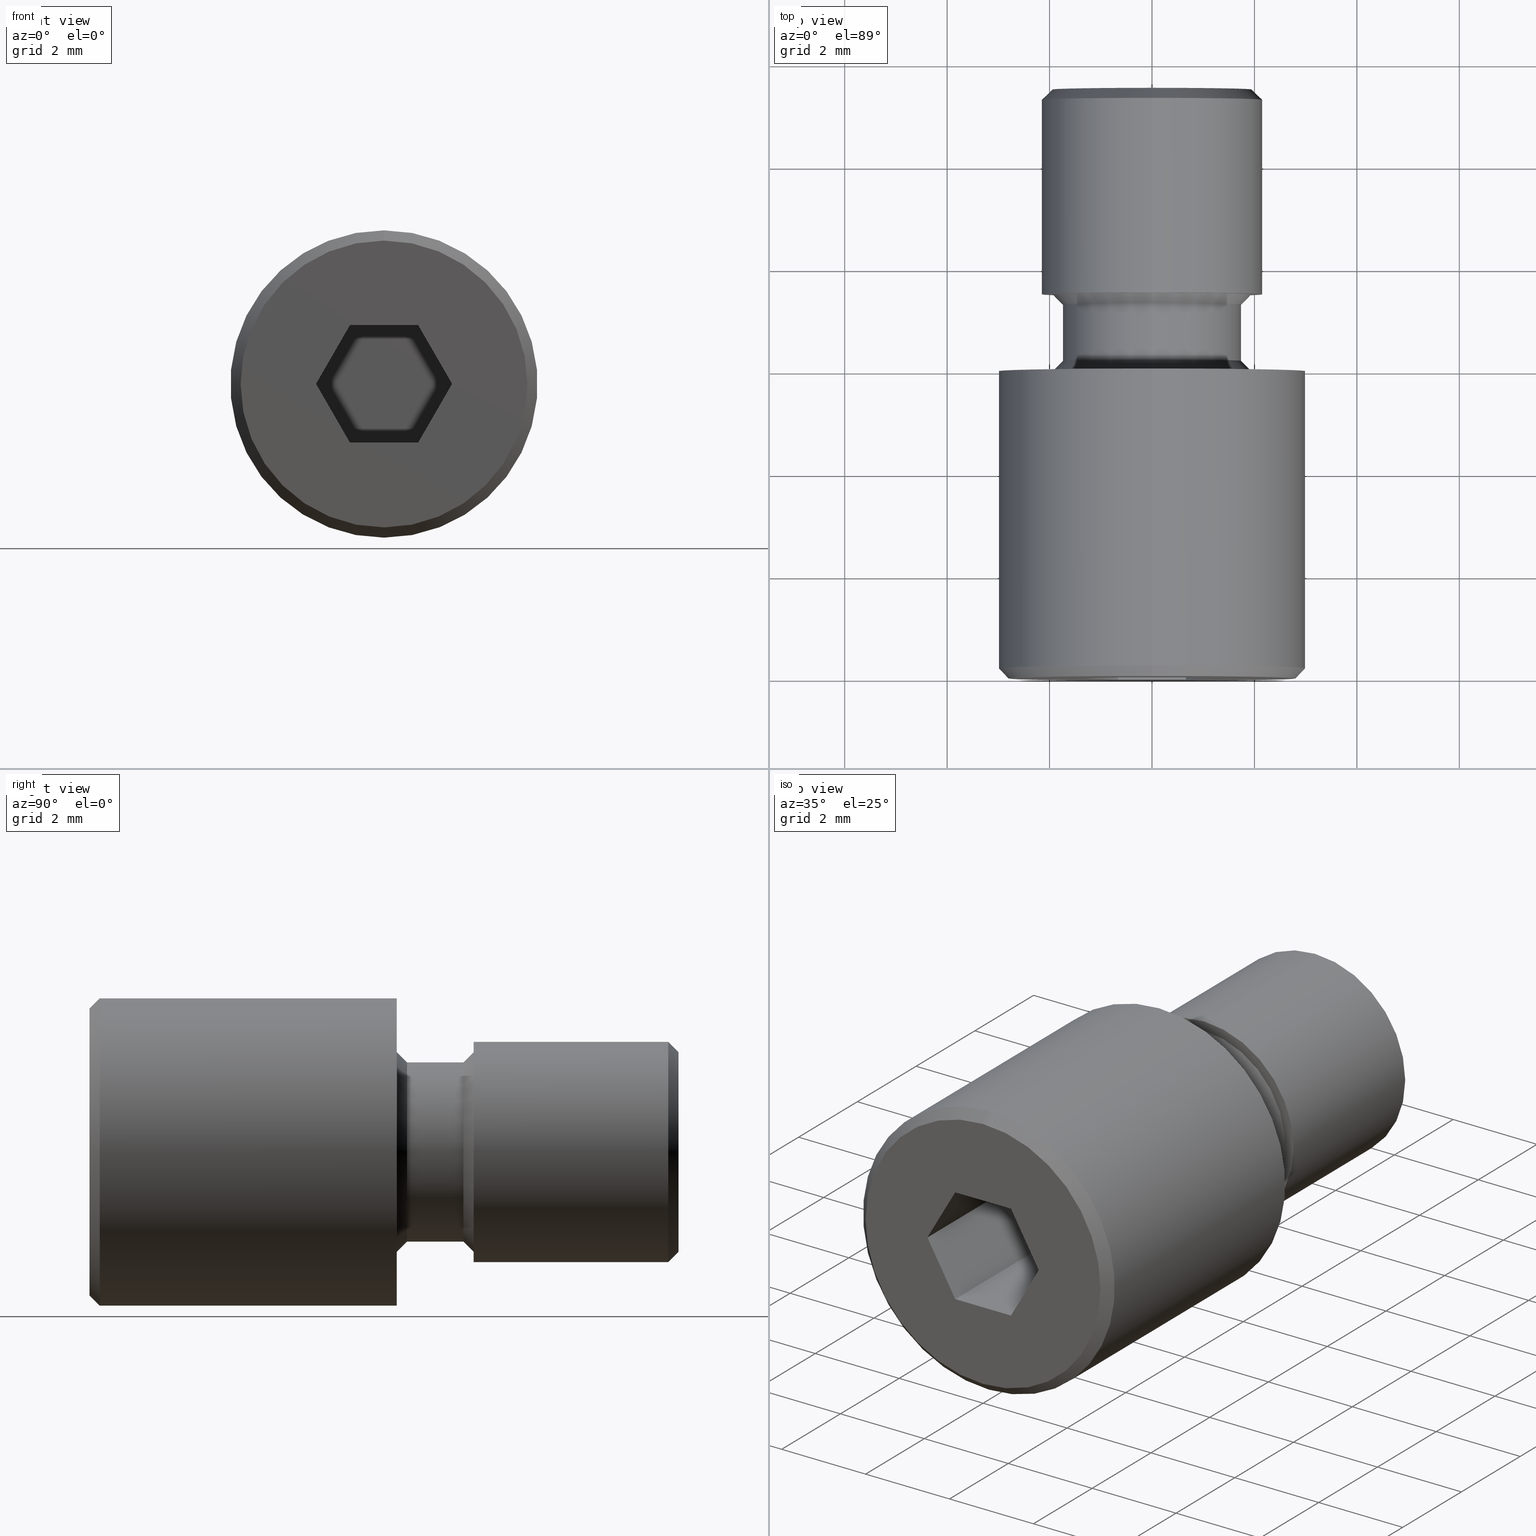
[diagram: canonical four-view strip — front | top / right | iso, engineering-drawing reading convention]
A machine part, canonical four-view strip (front | top / right | iso — engineering-drawing reading convention). The complete STEP part file that produces these views, byte-faithful:
ISO-10303-21;
HEADER;
FILE_DESCRIPTION (( 'STEP AP203' ),
    '1' );
FILE_NAME ('07SRT-3.STEP',
    '2016-04-26T01:09:13',
    ( '' ),
    ( '' ),
    'SwSTEP 2.0',
    'SolidWorks 2016',
    '' );
FILE_SCHEMA (( 'CONFIG_CONTROL_DESIGN' ));
ENDSEC;

DATA;
#1 = CARTESIAN_POINT ( 'NONE',  ( -1.327905619136139100, 3.000000000000000000, 0.0000000000000000000 ) ) ;
#2 = ORIENTED_EDGE ( 'NONE', *, *, #275, .T. ) ;
#3 = CARTESIAN_POINT ( 'NONE',  ( -1.327905619136139100, 3.000000000000000000, 0.0000000000000000000 ) ) ;
#4 = ORIENTED_EDGE ( 'NONE', *, *, #501, .T. ) ;
#5 = EDGE_CURVE ( 'NONE', #523, #890, #913, .T. ) ;
#6 = CARTESIAN_POINT ( 'NONE',  ( 0.0000000000000000000, 0.0000000000000000000, 0.0000000000000000000 ) ) ;
#7 = PRODUCT ( '07SRT-3', '07SRT-3', '', ( #79 ) ) ;
#8 = DIRECTION ( 'NONE',  ( 0.0000000000000000000, 0.0000000000000000000, 1.000000000000000000 ) ) ;
#9 = VECTOR ( 'NONE', #832, 1000.000000000000000 ) ;
#10 = CYLINDRICAL_SURFACE ( 'NONE', #178, 2.149999999999999900 ) ;
#11 = AXIS2_PLACEMENT_3D ( 'NONE', #825, #897, #20 ) ;
#12 = VERTEX_POINT ( 'NONE', #388 ) ;
#13 = VERTEX_POINT ( 'NONE', #26 ) ;
#14 = VERTEX_POINT ( 'NONE', #685 ) ;
#15 = CARTESIAN_POINT ( 'NONE',  ( -0.6639528095680696800, 3.000000000000000000, 1.149999999999999900 ) ) ;
#16 = PLANE ( 'NONE',  #908 ) ;
#17 = PERSON_AND_ORGANIZATION ( #89, #141 ) ;
#18 = SHAPE_DEFINITION_REPRESENTATION ( #431, #208 ) ;
#19 = LINE ( 'NONE', #666, #338 ) ;
#20 = DIRECTION ( 'NONE',  ( 0.0000000000000000000, 0.0000000000000000000, 1.000000000000000000 ) ) ;
#21 = FACE_OUTER_BOUND ( 'NONE', #624, .T. ) ;
#22 = AXIS2_PLACEMENT_3D ( 'NONE', #821, #103, #243 ) ;
#23 = VERTEX_POINT ( 'NONE', #701 ) ;
#24 = DIRECTION ( 'NONE',  ( -0.4999999999999998300, 0.0000000000000000000, 0.8660254037844387100 ) ) ;
#25 = ORIENTED_EDGE ( 'NONE', *, *, #405, .T. ) ;
#26 = CARTESIAN_POINT ( 'NONE',  ( 1.327905619136139800, 11.50000000000000000, -2.080547780227561100E-016 ) ) ;
#27 = AXIS2_PLACEMENT_3D ( 'NONE', #400, #475, #403 ) ;
#28 = LOCAL_TIME ( 9, 9, 13.00000000000000000, #91 ) ;
#29 = LINE ( 'NONE', #323, #222 ) ;
#30 = LINE ( 'NONE', #474, #211 ) ;
#31 = CARTESIAN_POINT ( 'NONE',  ( 0.0000000000000000000, 6.000000000000000000, 0.0000000000000000000 ) ) ;
#32 = ORIENTED_EDGE ( 'NONE', *, *, #726, .F. ) ;
#33 = EDGE_CURVE ( 'NONE', #648, #203, #132, .T. ) ;
#34 = DIRECTION ( 'NONE',  ( 0.0000000000000000000, 0.0000000000000000000, 1.000000000000000000 ) ) ;
#35 = ORIENTED_EDGE ( 'NONE', *, *, #33, .T. ) ;
#36 = ORIENTED_EDGE ( 'NONE', *, *, #52, .F. ) ;
#37 = VERTEX_POINT ( 'NONE', #609 ) ;
#38 = CARTESIAN_POINT ( 'NONE',  ( -0.6639528095680701200, -0.0000000000000000000, -1.149999999999999700 ) ) ;
#39 = CARTESIAN_POINT ( 'NONE',  ( 0.6639528095680701200, 3.000000000000000000, 1.149999999999999700 ) ) ;
#40 = CARTESIAN_POINT ( 'NONE',  ( -0.6639528095680696800, 8.500000000000000000, 1.150000000000000100 ) ) ;
#41 = DIRECTION ( 'NONE',  ( -0.0000000000000000000, 1.000000000000000000, -0.0000000000000000000 ) ) ;
#42 = AXIS2_PLACEMENT_3D ( 'NONE', #432, #78, #573 ) ;
#43 = PLANE ( 'NONE',  #641 ) ;
#44 = LINE ( 'NONE', #570, #879 ) ;
#45 = LINE ( 'NONE', #906, #392 ) ;
#46 = VECTOR ( 'NONE', #871, 1000.000000000000200 ) ;
#47 = DIRECTION ( 'NONE',  ( -0.0000000000000000000, -1.000000000000000000, -0.0000000000000000000 ) ) ;
#48 = VECTOR ( 'NONE', #196, 1000.000000000000100 ) ;
#49 = DIRECTION ( 'NONE',  ( -0.0000000000000000000, 1.000000000000000000, -0.0000000000000000000 ) ) ;
#50 = DIRECTION ( 'NONE',  ( 0.0000000000000000000, 0.0000000000000000000, 1.000000000000000000 ) ) ;
#51 = ORIENTED_EDGE ( 'NONE', *, *, #605, .F. ) ;
#52 = EDGE_CURVE ( 'NONE', #767, #862, #342, .T. ) ;
#53 = CARTESIAN_POINT ( 'NONE',  ( 0.6639528095680703500, 8.500000000000000000, -1.150000000000000100 ) ) ;
#54 = EDGE_LOOP ( 'NONE', ( #298, #62, #111, #532 ) ) ;
#55 = DIRECTION ( 'NONE',  ( 0.0000000000000000000, -0.0000000000000000000, 1.000000000000000000 ) ) ;
#56 = DIRECTION ( 'NONE',  ( -0.0000000000000000000, -1.000000000000000000, -0.0000000000000000000 ) ) ;
#57 = DIRECTION ( 'NONE',  ( 0.5000000000000000000, 0.0000000000000000000, 0.8660254037844386000 ) ) ;
#58 = EDGE_CURVE ( 'NONE', #767, #329, #951, .T. ) ;
#59 = LINE ( 'NONE', #261, #644 ) ;
#60 = CARTESIAN_POINT ( 'NONE',  ( 0.0000000000000000000, 0.0000000000000000000, 0.0000000000000000000 ) ) ;
#61 = FACE_OUTER_BOUND ( 'NONE', #366, .T. ) ;
#62 = ORIENTED_EDGE ( 'NONE', *, *, #935, .F. ) ;
#63 = ORIENTED_EDGE ( 'NONE', *, *, #158, .F. ) ;
#64 = ORIENTED_EDGE ( 'NONE', *, *, #515, .F. ) ;
#65 = DIRECTION ( 'NONE',  ( 1.000000000000000000, 0.0000000000000000000, 3.265901301602519900E-016 ) ) ;
#66 = CARTESIAN_POINT ( 'NONE',  ( 1.327905619136139800, 11.50000000000000000, -2.080547780227561100E-016 ) ) ;
#67 = PLANE ( 'NONE',  #891 ) ;
#68 = DIRECTION ( 'NONE',  ( 0.4999999999999996100, 0.0000000000000000000, -0.8660254037844388200 ) ) ;
#69 = CARTESIAN_POINT ( 'NONE',  ( 0.6639528095680696800, 3.000000000000000000, -1.149999999999999900 ) ) ;
#70 = CONICAL_SURFACE ( 'NONE', #380, 1.750000000000000000, 0.7853981633974433900 ) ;
#71 = CIRCLE ( 'NONE', #387, 1.950000000000000400 ) ;
#72 = VERTEX_POINT ( 'NONE', #636 ) ;
#73 = ORIENTED_EDGE ( 'NONE', *, *, #200, .F. ) ;
#74 = CARTESIAN_POINT ( 'NONE',  ( 2.143131898507868300E-016, 6.200000000000002000, 1.750000000000000000 ) ) ;
#75 = ORIENTED_EDGE ( 'NONE', *, *, #769, .F. ) ;
#76 = PERSON_AND_ORGANIZATION_ROLE ( 'classification_officer' ) ;
#77 = AXIS2_PLACEMENT_3D ( 'NONE', #579, #586, #660 ) ;
#78 = DIRECTION ( 'NONE',  ( -0.0000000000000000000, 1.000000000000000000, -0.0000000000000000000 ) ) ;
#79 = MECHANICAL_CONTEXT ( 'NONE', #146, 'mechanical' ) ;
#80 = FACE_OUTER_BOUND ( 'NONE', #812, .T. ) ;
#81 = DIRECTION ( 'NONE',  ( 1.000000000000000000, 0.0000000000000000000, 0.0000000000000000000 ) ) ;
#82 = AXIS2_PLACEMENT_3D ( 'NONE', #642, #201, #707 ) ;
#83 = ADVANCED_FACE ( 'NONE', ( #151 ), #487, .T. ) ;
#84 = LINE ( 'NONE', #330, #48 ) ;
#85 = VERTEX_POINT ( 'NONE', #782 ) ;
#86 = DIRECTION ( 'NONE',  ( 0.0000000000000000000, 1.000000000000000000, 0.0000000000000000000 ) ) ;
#87 = ORIENTED_EDGE ( 'NONE', *, *, #726, .T. ) ;
#88 = EDGE_CURVE ( 'NONE', #766, #457, #883, .T. ) ;
#89 = PERSON ( 'UNSPECIFIED', 'UNSPECIFIED', 'UNSPECIFIED', ('UNSPECIFIED'), ('UNSPECIFIED'), ('UNSPECIFIED') ) ;
#90 = PRODUCT_DEFINITION ( 'UNKNOWN', '', #159, #705 ) ;
#91 = COORDINATED_UNIVERSAL_TIME_OFFSET ( 8, 0, .AHEAD. ) ;
#92 = DIRECTION ( 'NONE',  ( 0.0000000000000000000, 1.000000000000000000, 0.0000000000000000000 ) ) ;
#93 = APPROVAL_PERSON_ORGANIZATION ( #867, #127, #653 ) ;
#94 = LINE ( 'NONE', #38, #663 ) ;
#95 = AXIS2_PLACEMENT_3D ( 'NONE', #697, #128, #413 ) ;
#96 = ORIENTED_EDGE ( 'NONE', *, *, #297, .F. ) ;
#97 = CARTESIAN_POINT ( 'NONE',  ( 1.327905619136139800, 8.500000000000000000, -2.080547780227561100E-016 ) ) ;
#98 = ORIENTED_EDGE ( 'NONE', *, *, #310, .F. ) ;
#99 = EDGE_LOOP ( 'NONE', ( #73, #467, #915, #500 ) ) ;
#100 = CARTESIAN_POINT ( 'NONE',  ( 0.0000000000000000000, 6.000000000000000000, 0.0000000000000000000 ) ) ;
#101 = AXIS2_PLACEMENT_3D ( 'NONE', #313, #247, #826 ) ;
#102 = ADVANCED_FACE ( 'NONE', ( #497 ), #335, .F. ) ;
#103 = DIRECTION ( 'NONE',  ( -0.0000000000000000000, -1.000000000000000000, -0.0000000000000000000 ) ) ;
#104 = CIRCLE ( 'NONE', #922, 1.950000000000000400 ) ;
#105 = VECTOR ( 'NONE', #303, 1000.000000000000000 ) ;
#106 = ADVANCED_FACE ( 'NONE', ( #777 ), #43, .F. ) ;
#107 = EDGE_CURVE ( 'NONE', #153, #72, #376, .T. ) ;
#108 = CARTESIAN_POINT ( 'NONE',  ( 0.6639528095680696800, 0.0000000000000000000, -1.149999999999999900 ) ) ;
#109 = VERTEX_POINT ( 'NONE', #263 ) ;
#110 = EDGE_LOOP ( 'NONE', ( #566, #133, #931, #231 ) ) ;
#111 = ORIENTED_EDGE ( 'NONE', *, *, #492, .F. ) ;
#112 = EDGE_CURVE ( 'NONE', #153, #814, #353, .T. ) ;
#113 = CARTESIAN_POINT ( 'NONE',  ( 0.6639528095680703500, 8.500000000000000000, -1.150000000000000100 ) ) ;
#114 = CONICAL_SURFACE ( 'NONE', #649, 3.000000000000000400, 0.7853981633974482800 ) ;
#115 = CIRCLE ( 'NONE', #762, 1.950000000000000400 ) ;
#116 = DIRECTION ( 'NONE',  ( 0.4999999999999998900, 0.0000000000000000000, 0.8660254037844387100 ) ) ;
#117 = ORIENTED_EDGE ( 'NONE', *, *, #324, .T. ) ;
#118 = EDGE_CURVE ( 'NONE', #890, #938, #753, .T. ) ;
#119 = ORIENTED_EDGE ( 'NONE', *, *, #169, .T. ) ;
#120 = DIRECTION ( 'NONE',  ( -0.4999999999999998300, 0.0000000000000000000, 0.8660254037844387100 ) ) ;
#121 = ORIENTED_EDGE ( 'NONE', *, *, #592, .T. ) ;
#122 = ORIENTED_EDGE ( 'NONE', *, *, #808, .T. ) ;
#123 = DIRECTION ( 'NONE',  ( -0.0000000000000000000, -1.000000000000000000, -0.0000000000000000000 ) ) ;
#124 = DIRECTION ( 'NONE',  ( 1.000000000000000000, 0.0000000000000000000, 3.265901301602519900E-016 ) ) ;
#125 = DIRECTION ( 'NONE',  ( -0.0000000000000000000, 1.000000000000000000, -0.0000000000000000000 ) ) ;
#126 = DIRECTION ( 'NONE',  ( 0.0000000000000000000, 0.0000000000000000000, 1.000000000000000000 ) ) ;
#127 = APPROVAL ( #512, 'UNSPECIFIED' ) ;
#128 = DIRECTION ( 'NONE',  ( -0.0000000000000000000, -1.000000000000000000, -0.0000000000000000000 ) ) ;
#129 = VECTOR ( 'NONE', #424, 1000.000000000000000 ) ;
#130 = CARTESIAN_POINT ( 'NONE',  ( 0.0000000000000000000, 7.500000000000000000, 0.0000000000000000000 ) ) ;
#131 = CYLINDRICAL_SURFACE ( 'NONE', #101, 3.000000000000000400 ) ;
#132 = CIRCLE ( 'NONE', #95, 2.799999999999999800 ) ;
#133 = ORIENTED_EDGE ( 'NONE', *, *, #215, .F. ) ;
#134 = AXIS2_PLACEMENT_3D ( 'NONE', #635, #933, #351 ) ;
#135 = ORIENTED_EDGE ( 'NONE', *, *, #254, .T. ) ;
#136 = ORIENTED_EDGE ( 'NONE', *, *, #746, .T. ) ;
#137 = DIRECTION ( 'NONE',  ( -0.4999999999999998900, 0.0000000000000000000, -0.8660254037844387100 ) ) ;
#138 = EDGE_CURVE ( 'NONE', #648, #85, #84, .T. ) ;
#139 = DIRECTION ( 'NONE',  ( 8.659560562354932900E-017, 0.7071067811865474600, -0.7071067811865474600 ) ) ;
#140 = CALENDAR_DATE ( 2016, 26, 4 ) ;
#141 = ORGANIZATION ( 'UNSPECIFIED', 'UNSPECIFIED', '' ) ;
#142 = CARTESIAN_POINT ( 'NONE',  ( 2.388061258337339100E-016, 7.500000000000000000, -1.950000000000000400 ) ) ;
#143 = VECTOR ( 'NONE', #894, 1000.000000000000000 ) ;
#144 = ORIENTED_EDGE ( 'NONE', *, *, #509, .F. ) ;
#145 = ORIENTED_EDGE ( 'NONE', *, *, #282, .T. ) ;
#146 = APPLICATION_CONTEXT ( 'configuration controlled 3d designs of mechanical parts and assemblies' ) ;
#147 = AXIS2_PLACEMENT_3D ( 'NONE', #321, #549, #34 ) ;
#148 = PLANE ( 'NONE',  #877 ) ;
#149 = AXIS2_PLACEMENT_3D ( 'NONE', #100, #464, #750 ) ;
#150 = LINE ( 'NONE', #885, #538 ) ;
#151 = FACE_OUTER_BOUND ( 'NONE', #589, .T. ) ;
#152 = APPROVAL_ROLE ( '' ) ;
#153 = VERTEX_POINT ( 'NONE', #256 ) ;
#154 = DIRECTION ( 'NONE',  ( 0.0000000000000000000, -0.0000000000000000000, 1.000000000000000000 ) ) ;
#155 = ORIENTED_EDGE ( 'NONE', *, *, #689, .T. ) ;
#156 = ADVANCED_FACE ( 'NONE', ( #829 ), #163, .T. ) ;
#157 = ORIENTED_EDGE ( 'NONE', *, *, #918, .T. ) ;
#158 = EDGE_CURVE ( 'NONE', #369, #23, #634, .T. ) ;
#159 = PRODUCT_DEFINITION_FORMATION_WITH_SPECIFIED_SOURCE ( 'ANY', '', #7, .NOT_KNOWN. ) ;
#160 = CARTESIAN_POINT ( 'NONE',  ( 1.327905619136139100, 0.0000000000000000000, -3.659182332138577500E-016 ) ) ;
#161 = PERSON_AND_ORGANIZATION ( #89, #141 ) ;
#162 = APPROVAL_DATE_TIME ( #352, #476 ) ;
#163 = CONICAL_SURFACE ( 'NONE', #147, 3.000000000000000400, 0.7853981633974482800 ) ;
#164 = ADVANCED_FACE ( 'NONE', ( #61 ), #618, .T. ) ;
#165 = ORIENTED_EDGE ( 'NONE', *, *, #5, .F. ) ;
#166 = ORIENTED_EDGE ( 'NONE', *, *, #613, .F. ) ;
#167 = CARTESIAN_POINT ( 'NONE',  ( 0.0000000000000000000, 7.500000000000000000, -1.750000000000000000 ) ) ;
#168 = EDGE_LOOP ( 'NONE', ( #398, #117, #145, #399 ) ) ;
#169 = EDGE_CURVE ( 'NONE', #183, #534, #394, .T. ) ;
#170 = DIRECTION ( 'NONE',  ( -0.0000000000000000000, 1.000000000000000000, -0.0000000000000000000 ) ) ;
#171 = CONICAL_SURFACE ( 'NONE', #327, 1.950000000000000400, 0.7853981633974461700 ) ;
#172 = FACE_OUTER_BOUND ( 'NONE', #279, .T. ) ;
#173 = CARTESIAN_POINT ( 'NONE',  ( 0.0000000000000000000, 7.500000000000000000, 1.950000000000000400 ) ) ;
#174 = VERTEX_POINT ( 'NONE', #841 ) ;
#175 = ORIENTED_EDGE ( 'NONE', *, *, #827, .T. ) ;
#176 = ORIENTED_EDGE ( 'NONE', *, *, #789, .T. ) ;
#177 = CARTESIAN_POINT ( 'NONE',  ( 0.0000000000000000000, 11.50000000000000000, 0.0000000000000000000 ) ) ;
#178 = AXIS2_PLACEMENT_3D ( 'NONE', #402, #907, #849 ) ;
#179 = FACE_OUTER_BOUND ( 'NONE', #941, .T. ) ;
#180 = CARTESIAN_POINT ( 'NONE',  ( 0.0000000000000000000, 7.300000000000000700, 0.0000000000000000000 ) ) ;
#181 = EDGE_CURVE ( 'NONE', #369, #153, #572, .T. ) ;
#182 = CARTESIAN_POINT ( 'NONE',  ( 0.6639528095680703500, 8.500000000000000000, -1.150000000000000100 ) ) ;
#183 = VERTEX_POINT ( 'NONE', #545 ) ;
#184 = CC_DESIGN_DATE_AND_TIME_ASSIGNMENT ( #306, #591, ( #90 ) ) ;
#185 = ADVANCED_FACE ( 'NONE', ( #607 ), #10, .T. ) ;
#186 = DIRECTION ( 'NONE',  ( 0.0000000000000000000, -1.000000000000000000, 0.0000000000000000000 ) ) ;
#187 = ORIENTED_EDGE ( 'NONE', *, *, #853, .F. ) ;
#188 = CARTESIAN_POINT ( 'NONE',  ( -0.6639528095680696800, 11.50000000000000000, 1.150000000000000100 ) ) ;
#189 = ORIENTED_EDGE ( 'NONE', *, *, #560, .F. ) ;
#190 = ADVANCED_FACE ( 'NONE', ( #551, #811 ), #692, .T. ) ;
#191 = DIRECTION ( 'NONE',  ( 0.0000000000000000000, 1.000000000000000000, 0.0000000000000000000 ) ) ;
#192 = DIRECTION ( 'NONE',  ( 0.0000000000000000000, -1.000000000000000000, 0.0000000000000000000 ) ) ;
#193 = DATE_AND_TIME ( #140, #571 ) ;
#194 = CARTESIAN_POINT ( 'NONE',  ( -0.6639528095680701200, 3.000000000000000000, -1.149999999999999700 ) ) ;
#195 = LINE ( 'NONE', #219, #326 ) ;
#196 = DIRECTION ( 'NONE',  ( 0.0000000000000000000, 0.7071067811865474600, 0.7071067811865474600 ) ) ;
#197 = FACE_OUTER_BOUND ( 'NONE', #764, .T. ) ;
#198 = CYLINDRICAL_SURFACE ( 'NONE', #228, 1.750000000000000000 ) ;
#199 = LINE ( 'NONE', #108, #675 ) ;
#200 = EDGE_CURVE ( 'NONE', #426, #37, #937, .T. ) ;
#201 = DIRECTION ( 'NONE',  ( -0.8660254037844387100, 0.0000000000000000000, 0.4999999999999998300 ) ) ;
#202 = ORIENTED_EDGE ( 'NONE', *, *, #458, .T. ) ;
#203 = VERTEX_POINT ( 'NONE', #920 ) ;
#204 = DIRECTION ( 'NONE',  ( -0.0000000000000000000, 1.000000000000000000, -0.0000000000000000000 ) ) ;
#205 = CARTESIAN_POINT ( 'NONE',  ( 3.673940397442060400E-016, 6.000000000000000000, 3.000000000000000400 ) ) ;
#206 = CARTESIAN_POINT ( 'NONE',  ( 0.0000000000000000000, 0.2000000000000005100, 0.0000000000000000000 ) ) ;
#207 = DIRECTION ( 'NONE',  ( 0.8660254037844387100, 0.0000000000000000000, -0.4999999999999998300 ) ) ;
#208 = ADVANCED_BREP_SHAPE_REPRESENTATION ( '07SRT-3', ( #783, #246 ), #791 ) ;
#209 = DIRECTION ( 'NONE',  ( -0.0000000000000000000, 1.000000000000000000, -0.0000000000000000000 ) ) ;
#210 = LINE ( 'NONE', #97, #230 ) ;
#211 = VECTOR ( 'NONE', #41, 1000.000000000000000 ) ;
#212 = ORIENTED_EDGE ( 'NONE', *, *, #254, .F. ) ;
#213 = DIRECTION ( 'NONE',  ( -0.0000000000000000000, -1.000000000000000000, -0.0000000000000000000 ) ) ;
#214 = ORIENTED_EDGE ( 'NONE', *, *, #58, .T. ) ;
#215 = EDGE_CURVE ( 'NONE', #72, #863, #30, .T. ) ;
#216 = ORIENTED_EDGE ( 'NONE', *, *, #200, .T. ) ;
#217 = VERTEX_POINT ( 'NONE', #627 ) ;
#218 = CARTESIAN_POINT ( 'NONE',  ( 0.6639528095680703500, 11.50000000000000000, -1.150000000000000100 ) ) ;
#219 = CARTESIAN_POINT ( 'NONE',  ( -0.6639528095680696800, 8.500000000000000000, 1.150000000000000100 ) ) ;
#220 = CARTESIAN_POINT ( 'NONE',  ( 0.0000000000000000000, 11.50000000000000000, 0.0000000000000000000 ) ) ;
#221 = LOCAL_TIME ( 9, 9, 13.00000000000000000, #374 ) ;
#222 = VECTOR ( 'NONE', #911, 1000.000000000000000 ) ;
#223 = CARTESIAN_POINT ( 'NONE',  ( 0.0000000000000000000, 7.500000000000000000, 0.0000000000000000000 ) ) ;
#224 = VERTEX_POINT ( 'NONE', #188 ) ;
#225 = CARTESIAN_POINT ( 'NONE',  ( 0.0000000000000000000, 6.000000000000000000, 0.0000000000000000000 ) ) ;
#226 = AXIS2_PLACEMENT_3D ( 'NONE', #930, #496, #665 ) ;
#227 = DIRECTION ( 'NONE',  ( 0.8660254037844388200, -0.0000000000000000000, 0.4999999999999996100 ) ) ;
#228 = AXIS2_PLACEMENT_3D ( 'NONE', #406, #485, #912 ) ;
#229 = APPROVAL_PERSON_ORGANIZATION ( #594, #447, #435 ) ;
#230 = VECTOR ( 'NONE', #170, 1000.000000000000000 ) ;
#231 = ORIENTED_EDGE ( 'NONE', *, *, #112, .T. ) ;
#232 = VERTEX_POINT ( 'NONE', #39 ) ;
#233 = ORIENTED_EDGE ( 'NONE', *, *, #5, .T. ) ;
#234 = ADVANCED_FACE ( 'NONE', ( #949 ), #198, .T. ) ;
#235 = VECTOR ( 'NONE', #643, 1000.000000000000000 ) ;
#236 = CC_DESIGN_DATE_AND_TIME_ASSIGNMENT ( #383, #874, ( #837 ) ) ;
#237 = LINE ( 'NONE', #688, #9 ) ;
#238 = FACE_OUTER_BOUND ( 'NONE', #347, .T. ) ;
#239 = ORIENTED_EDGE ( 'NONE', *, *, #834, .T. ) ;
#240 = EDGE_LOOP ( 'NONE', ( #122, #530, #239, #25, #893, #940 ) ) ;
#241 = ORIENTED_EDGE ( 'NONE', *, *, #310, .T. ) ;
#242 = EDGE_CURVE ( 'NONE', #728, #525, #199, .T. ) ;
#243 = DIRECTION ( 'NONE',  ( 0.0000000000000000000, 0.0000000000000000000, -1.000000000000000000 ) ) ;
#244 = ADVANCED_FACE ( 'NONE', ( #21 ), #716, .F. ) ;
#245 = VECTOR ( 'NONE', #755, 1000.000000000000000 ) ;
#246 = AXIS2_PLACEMENT_3D ( 'NONE', #6, #520, #81 ) ;
#247 = DIRECTION ( 'NONE',  ( -0.0000000000000000000, -1.000000000000000000, -0.0000000000000000000 ) ) ;
#248 = EDGE_LOOP ( 'NONE', ( #831, #852, #875, #382 ) ) ;
#249 = DIRECTION ( 'NONE',  ( 0.0000000000000000000, 1.000000000000000000, 0.0000000000000000000 ) ) ;
#250 = ORIENTED_EDGE ( 'NONE', *, *, #757, .T. ) ;
#251 = VERTEX_POINT ( 'NONE', #619 ) ;
#252 = DIRECTION ( 'NONE',  ( -0.8660254037844387100, 0.0000000000000000000, 0.4999999999999998300 ) ) ;
#253 = CARTESIAN_POINT ( 'NONE',  ( 0.0000000000000000000, 6.000000000000000000, 0.0000000000000000000 ) ) ;
#254 = EDGE_CURVE ( 'NONE', #669, #862, #71, .T. ) ;
#255 = CARTESIAN_POINT ( 'NONE',  ( 0.0000000000000000000, 6.200000000000002000, 0.0000000000000000000 ) ) ;
#256 = CARTESIAN_POINT ( 'NONE',  ( -0.6639528095680691200, 8.500000000000000000, -1.150000000000000800 ) ) ;
#257 = LOCAL_TIME ( 9, 9, 13.00000000000000000, #945 ) ;
#258 = CARTESIAN_POINT ( 'NONE',  ( -0.6639528095680691200, 8.500000000000000000, -1.150000000000000800 ) ) ;
#259 = ADVANCED_FACE ( 'NONE', ( #238 ), #900, .T. ) ;
#260 = VECTOR ( 'NONE', #137, 1000.000000000000000 ) ;
#261 = CARTESIAN_POINT ( 'NONE',  ( 2.632990618166809200E-016, 11.50000000000000000, 2.149999999999999900 ) ) ;
#262 = ORIENTED_EDGE ( 'NONE', *, *, #242, .F. ) ;
#263 = CARTESIAN_POINT ( 'NONE',  ( -0.6639528095680701200, 0.0000000000000000000, -1.149999999999999900 ) ) ;
#264 = ORIENTED_EDGE ( 'NONE', *, *, #112, .F. ) ;
#265 = ORIENTED_EDGE ( 'NONE', *, *, #853, .T. ) ;
#266 = CARTESIAN_POINT ( 'NONE',  ( 0.0000000000000000000, 11.29999999999999900, -2.149999999999999900 ) ) ;
#267 = ORIENTED_EDGE ( 'NONE', *, *, #858, .F. ) ;
#268 = AXIS2_PLACEMENT_3D ( 'NONE', #278, #715, #857 ) ;
#269 = DIRECTION ( 'NONE',  ( 8.659560562354964900E-017, 0.7071067811865449100, -0.7071067811865502400 ) ) ;
#270 = CARTESIAN_POINT ( 'NONE',  ( 1.327905619136139100, 3.000000000000000000, -3.659182332138577500E-016 ) ) ;
#271 = CARTESIAN_POINT ( 'NONE',  ( 1.327905619136139800, 8.500000000000000000, -2.080547780227561100E-016 ) ) ;
#272 = FACE_OUTER_BOUND ( 'NONE', #621, .T. ) ;
#273 = CARTESIAN_POINT ( 'NONE',  ( -0.6639528095680701200, 3.000000000000000000, -1.149999999999999700 ) ) ;
#274 = VECTOR ( 'NONE', #49, 1000.000000000000000 ) ;
#275 = EDGE_CURVE ( 'NONE', #744, #369, #881, .T. ) ;
#276 = CARTESIAN_POINT ( 'NONE',  ( 0.0000000000000000000, 7.500000000000000000, 0.0000000000000000000 ) ) ;
#277 = EDGE_LOOP ( 'NONE', ( #483, #779, #499, #794 ) ) ;
#278 = CARTESIAN_POINT ( 'NONE',  ( 0.0000000000000000000, 6.000000000000000000, 0.0000000000000000000 ) ) ;
#279 = EDGE_LOOP ( 'NONE', ( #713, #781, #756, #848 ) ) ;
#280 = DIRECTION ( 'NONE',  ( 0.0000000000000000000, 0.0000000000000000000, 1.000000000000000000 ) ) ;
#281 = DIRECTION ( 'NONE',  ( 0.0000000000000000000, 0.0000000000000000000, 1.000000000000000000 ) ) ;
#282 = EDGE_CURVE ( 'NONE', #85, #534, #846, .T. ) ;
#283 = AXIS2_PLACEMENT_3D ( 'NONE', #31, #337, #50 ) ;
#284 = DIRECTION ( 'NONE',  ( 0.0000000000000000000, 1.000000000000000000, 0.0000000000000000000 ) ) ;
#285 = VECTOR ( 'NONE', #116, 1000.000000000000000 ) ;
#286 = VECTOR ( 'NONE', #503, 1000.000000000000000 ) ;
#287 = ORIENTED_EDGE ( 'NONE', *, *, #626, .T. ) ;
#288 =( NAMED_UNIT ( * ) PLANE_ANGLE_UNIT ( ) SI_UNIT ( $, .RADIAN. ) );
#289 = DIRECTION ( 'NONE',  ( 0.0000000000000000000, 0.0000000000000000000, 1.000000000000000000 ) ) ;
#290 = CARTESIAN_POINT ( 'NONE',  ( 0.0000000000000000000, 7.500000000000000000, 0.0000000000000000000 ) ) ;
#291 = DIRECTION ( 'NONE',  ( -0.0000000000000000000, 1.000000000000000000, -0.0000000000000000000 ) ) ;
#292 = LINE ( 'NONE', #552, #129 ) ;
#293 = VECTOR ( 'NONE', #24, 1000.000000000000000 ) ;
#294 = APPLICATION_CONTEXT ( 'configuration controlled 3d designs of mechanical parts and assemblies' ) ;
#295 = VECTOR ( 'NONE', #139, 1000.000000000000100 ) ;
#296 = ORIENTED_EDGE ( 'NONE', *, *, #658, .F. ) ;
#297 = EDGE_CURVE ( 'NONE', #14, #851, #684, .T. ) ;
#298 = ORIENTED_EDGE ( 'NONE', *, *, #683, .T. ) ;
#299 = SECURITY_CLASSIFICATION_LEVEL ( 'unclassified' ) ;
#300 = ORIENTED_EDGE ( 'NONE', *, *, #918, .F. ) ;
#301 = AXIS2_PLACEMENT_3D ( 'NONE', #401, #192, #411 ) ;
#302 = ORIENTED_EDGE ( 'NONE', *, *, #746, .F. ) ;
#303 = DIRECTION ( 'NONE',  ( 0.4999999999999997200, -0.0000000000000000000, -0.8660254037844388200 ) ) ;
#304 = ADVANCED_FACE ( 'NONE', ( #751 ), #926, .F. ) ;
#305 = EDGE_CURVE ( 'NONE', #851, #14, #774, .T. ) ;
#306 = DATE_AND_TIME ( #693, #722 ) ;
#307 = VECTOR ( 'NONE', #362, 1000.000000000000200 ) ;
#308 = ORIENTED_EDGE ( 'NONE', *, *, #33, .F. ) ;
#309 = EDGE_LOOP ( 'NONE', ( #32, #427, #864, #792 ) ) ;
#310 = EDGE_CURVE ( 'NONE', #823, #109, #800, .T. ) ;
#311 = EDGE_LOOP ( 'NONE', ( #833, #155 ) ) ;
#312 = CARTESIAN_POINT ( 'NONE',  ( 0.0000000000000000000, 0.0000000000000000000, 2.799999999999999800 ) ) ;
#313 = CARTESIAN_POINT ( 'NONE',  ( 0.0000000000000000000, 6.000000000000000000, 0.0000000000000000000 ) ) ;
#314 = LINE ( 'NONE', #934, #662 ) ;
#315 = AXIS2_PLACEMENT_3D ( 'NONE', #650, #416, #925 ) ;
#316 = ADVANCED_FACE ( 'NONE', ( #521 ), #704, .F. ) ;
#317 = VECTOR ( 'NONE', #895, 1000.000000000000000 ) ;
#318 = FACE_OUTER_BOUND ( 'NONE', #99, .T. ) ;
#319 = ORIENTED_EDGE ( 'NONE', *, *, #592, .F. ) ;
#320 = ORIENTED_EDGE ( 'NONE', *, *, #58, .F. ) ;
#321 = CARTESIAN_POINT ( 'NONE',  ( 0.0000000000000000000, 0.2000000000000005100, 0.0000000000000000000 ) ) ;
#322 = AXIS2_PLACEMENT_3D ( 'NONE', #220, #866, #588 ) ;
#323 = CARTESIAN_POINT ( 'NONE',  ( 0.6639528095680701200, 3.000000000000000000, 1.149999999999999700 ) ) ;
#324 = EDGE_CURVE ( 'NONE', #553, #85, #565, .T. ) ;
#325 = DIRECTION ( 'NONE',  ( 0.0000000000000000000, -0.0000000000000000000, 1.000000000000000000 ) ) ;
#326 = VECTOR ( 'NONE', #291, 1000.000000000000000 ) ;
#327 = AXIS2_PLACEMENT_3D ( 'NONE', #847, #186, #916 ) ;
#328 = CYLINDRICAL_SURFACE ( 'NONE', #943, 1.750000000000000000 ) ;
#329 = VERTEX_POINT ( 'NONE', #712 ) ;
#330 = CARTESIAN_POINT ( 'NONE',  ( 0.0000000000000000000, 0.2000000000000005100, 3.000000000000000400 ) ) ;
#331 = ORIENTED_EDGE ( 'NONE', *, *, #595, .F. ) ;
#332 = CLOSED_SHELL ( 'NONE', ( #679, #164, #454, #156, #259, #234, #599, #673, #190, #547, #462, #185, #482, #815, #316, #471, #106, #304, #882, #244, #83, #102, #695, #909, #901, #372, #612, #892, #809, #759, #736, #752 ) ) ;
#333 = DIRECTION ( 'NONE',  ( -0.0000000000000000000, 1.000000000000000000, -0.0000000000000000000 ) ) ;
#334 = DIRECTION ( 'NONE',  ( -1.000000000000000000, 0.0000000000000000000, 1.632950650801259500E-016 ) ) ;
#335 = PLANE ( 'NONE',  #469 ) ;
#336 = LINE ( 'NONE', #1, #652 ) ;
#337 = DIRECTION ( 'NONE',  ( 0.0000000000000000000, 1.000000000000000000, 0.0000000000000000000 ) ) ;
#338 = VECTOR ( 'NONE', #888, 1000.000000000000000 ) ;
#339 = AXIS2_PLACEMENT_3D ( 'NONE', #253, #249, #325 ) ;
#340 = FACE_BOUND ( 'NONE', #884, .T. ) ;
#341 = DIRECTION ( 'NONE',  ( -1.000000000000000000, 0.0000000000000000000, -4.898851952403779800E-016 ) ) ;
#342 = LINE ( 'NONE', #640, #801 ) ;
#343 = ORIENTED_EDGE ( 'NONE', *, *, #671, .F. ) ;
#344 = PLANE ( 'NONE',  #226 ) ;
#345 = CARTESIAN_POINT ( 'NONE',  ( 1.327905619136139100, 0.0000000000000000000, -3.659182332138577500E-016 ) ) ;
#346 = VERTEX_POINT ( 'NONE', #266 ) ;
#347 = EDGE_LOOP ( 'NONE', ( #727, #87, #659, #343 ) ) ;
#348 = DIRECTION ( 'NONE',  ( -1.000000000000000000, 0.0000000000000000000, 1.632950650801259500E-016 ) ) ;
#349 = EDGE_CURVE ( 'NONE', #525, #523, #723, .T. ) ;
#350 = CC_DESIGN_APPROVAL ( #476, ( #90 ) ) ;
#351 = DIRECTION ( 'NONE',  ( 0.0000000000000000000, 0.0000000000000000000, 1.000000000000000000 ) ) ;
#352 = DATE_AND_TIME ( #748, #221 ) ;
#353 = LINE ( 'NONE', #558, #274 ) ;
#354 = EDGE_CURVE ( 'NONE', #862, #669, #654, .T. ) ;
#355 = DIRECTION ( 'NONE',  ( 0.8660254037844387100, 0.0000000000000000000, 0.4999999999999999400 ) ) ;
#356 = ORIENTED_EDGE ( 'NONE', *, *, #886, .F. ) ;
#357 = ORIENTED_EDGE ( 'NONE', *, *, #349, .F. ) ;
#358 = CARTESIAN_POINT ( 'NONE',  ( -0.6639528095680691200, 11.50000000000000000, -1.150000000000000800 ) ) ;
#359 = DIRECTION ( 'NONE',  ( 0.0000000000000000000, 0.0000000000000000000, 1.000000000000000000 ) ) ;
#360 = APPROVAL_STATUS ( 'not_yet_approved' ) ;
#361 = FACE_OUTER_BOUND ( 'NONE', #699, .T. ) ;
#362 = DIRECTION ( 'NONE',  ( -0.4999999999999995600, 0.0000000000000000000, 0.8660254037844388200 ) ) ;
#363 = LINE ( 'NONE', #488, #859 ) ;
#364 = VECTOR ( 'NONE', #123, 1000.000000000000000 ) ;
#365 = APPLICATION_PROTOCOL_DEFINITION ( 'international standard', 'config_control_design', 1994, #294 ) ;
#366 = EDGE_LOOP ( 'NONE', ( #320, #733, #212, #51 ) ) ;
#367 = CC_DESIGN_PERSON_AND_ORGANIZATION_ASSIGNMENT ( #17, #868, ( #159 ) ) ;
#368 = DIRECTION ( 'NONE',  ( 0.0000000000000000000, 1.000000000000000000, 0.0000000000000000000 ) ) ;
#369 = VERTEX_POINT ( 'NONE', #53 ) ;
#370 = CARTESIAN_POINT ( 'NONE',  ( 1.327905619136139100, 3.000000000000000000, -3.659182332138577500E-016 ) ) ;
#371 = ORIENTED_EDGE ( 'NONE', *, *, #711, .T. ) ;
#372 = ADVANCED_FACE ( 'NONE', ( #172 ), #661, .F. ) ;
#373 = EDGE_CURVE ( 'NONE', #174, #251, #820, .T. ) ;
#374 = COORDINATED_UNIVERSAL_TIME_OFFSET ( 8, 0, .AHEAD. ) ;
#375 = CARTESIAN_POINT ( 'NONE',  ( 0.0000000000000000000, 0.2000000000000005100, -3.000000000000000400 ) ) ;
#376 = LINE ( 'NONE', #258, #861 ) ;
#377 = ORIENTED_EDGE ( 'NONE', *, *, #373, .F. ) ;
#378 = EDGE_CURVE ( 'NONE', #346, #12, #510, .T. ) ;
#379 = VERTEX_POINT ( 'NONE', #651 ) ;
#380 = AXIS2_PLACEMENT_3D ( 'NONE', #255, #629, #780 ) ;
#381 = CARTESIAN_POINT ( 'NONE',  ( 0.0000000000000000000, 11.50000000000000000, 0.0000000000000000000 ) ) ;
#382 = ORIENTED_EDGE ( 'NONE', *, *, #696, .T. ) ;
#383 = DATE_AND_TIME ( #739, #28 ) ;
#384 = CARTESIAN_POINT ( 'NONE',  ( 3.673940397442060400E-016, 6.000000000000000000, 3.000000000000000400 ) ) ;
#385 = PERSON_AND_ORGANIZATION ( #89, #141 ) ;
#386 = FACE_OUTER_BOUND ( 'NONE', #533, .T. ) ;
#387 = AXIS2_PLACEMENT_3D ( 'NONE', #489, #417, #126 ) ;
#388 = CARTESIAN_POINT ( 'NONE',  ( 2.632990618166809200E-016, 11.29999999999999900, 2.149999999999999900 ) ) ;
#389 = ORIENTED_EDGE ( 'NONE', *, *, #88, .F. ) ;
#390 = ORIENTED_EDGE ( 'NONE', *, *, #354, .F. ) ;
#391 = DIRECTION ( 'NONE',  ( 0.0000000000000000000, 0.7071067811865449100, 0.7071067811865502400 ) ) ;
#392 = VECTOR ( 'NONE', #391, 1000.000000000000100 ) ;
#393 = CARTESIAN_POINT ( 'NONE',  ( -0.6639528095680701200, 3.000000000000000000, -1.149999999999999700 ) ) ;
#394 = LINE ( 'NONE', #623, #664 ) ;
#395 = ORIENTED_EDGE ( 'NONE', *, *, #373, .T. ) ;
#396 = ORIENTED_EDGE ( 'NONE', *, *, #738, .F. ) ;
#397 = CARTESIAN_POINT ( 'NONE',  ( 1.327905619136139800, 8.500000000000000000, -2.080547780227561100E-016 ) ) ;
#398 = ORIENTED_EDGE ( 'NONE', *, *, #689, .F. ) ;
#399 = ORIENTED_EDGE ( 'NONE', *, *, #169, .F. ) ;
#400 = CARTESIAN_POINT ( 'NONE',  ( 0.0000000000000000000, 7.300000000000000700, 0.0000000000000000000 ) ) ;
#401 = CARTESIAN_POINT ( 'NONE',  ( 0.0000000000000000000, 6.200000000000002000, 0.0000000000000000000 ) ) ;
#402 = CARTESIAN_POINT ( 'NONE',  ( 0.0000000000000000000, 11.50000000000000000, 0.0000000000000000000 ) ) ;
#403 = DIRECTION ( 'NONE',  ( 0.0000000000000000000, 0.0000000000000000000, 1.000000000000000000 ) ) ;
#404 = CARTESIAN_POINT ( 'NONE',  ( 0.0000000000000000000, 6.200000000000002000, -1.750000000000000000 ) ) ;
#405 = EDGE_CURVE ( 'NONE', #805, #232, #606, .T. ) ;
#406 = CARTESIAN_POINT ( 'NONE',  ( 0.0000000000000000000, 7.500000000000000000, 0.0000000000000000000 ) ) ;
#407 = PERSON_AND_ORGANIZATION ( #89, #141 ) ;
#408 = CARTESIAN_POINT ( 'NONE',  ( -0.6639528095680696800, 0.0000000000000000000, 1.149999999999999900 ) ) ;
#409 = LINE ( 'NONE', #603, #494 ) ;
#410 = FACE_OUTER_BOUND ( 'NONE', #277, .T. ) ;
#411 = DIRECTION ( 'NONE',  ( 0.0000000000000000000, 0.0000000000000000000, -1.000000000000000000 ) ) ;
#412 = ORIENTED_EDGE ( 'NONE', *, *, #803, .F. ) ;
#413 = DIRECTION ( 'NONE',  ( 0.0000000000000000000, 0.0000000000000000000, 1.000000000000000000 ) ) ;
#414 = EDGE_LOOP ( 'NONE', ( #144, #575, #714, #917 ) ) ;
#415 = ORIENTED_EDGE ( 'NONE', *, *, #181, .T. ) ;
#416 = DIRECTION ( 'NONE',  ( -0.8660254037844387100, 0.0000000000000000000, -0.4999999999999998300 ) ) ;
#417 = DIRECTION ( 'NONE',  ( 0.0000000000000000000, 1.000000000000000000, 0.0000000000000000000 ) ) ;
#418 = CC_DESIGN_SECURITY_CLASSIFICATION ( #837, ( #159 ) ) ;
#419 = CARTESIAN_POINT ( 'NONE',  ( 2.143131898507868300E-016, 6.200000000000002000, 1.750000000000000000 ) ) ;
#420 = CIRCLE ( 'NONE', #11, 2.149999999999999900 ) ;
#421 = AXIS2_PLACEMENT_3D ( 'NONE', #770, #191, #55 ) ;
#422 = VECTOR ( 'NONE', #921, 1000.000000000000000 ) ;
#423 = EDGE_LOOP ( 'NONE', ( #175, #601 ) ) ;
#424 = DIRECTION ( 'NONE',  ( 0.4999999999999997200, -0.0000000000000000000, -0.8660254037844388200 ) ) ;
#425 = DIRECTION ( 'NONE',  ( 0.0000000000000000000, 1.000000000000000000, 0.0000000000000000000 ) ) ;
#426 = VERTEX_POINT ( 'NONE', #878 ) ;
#427 = ORIENTED_EDGE ( 'NONE', *, *, #577, .T. ) ;
#428 = EDGE_CURVE ( 'NONE', #203, #534, #436, .T. ) ;
#429 = CARTESIAN_POINT ( 'NONE',  ( 0.6639528095680696800, 8.500000000000000000, 1.150000000000000600 ) ) ;
#430 = AXIS2_PLACEMENT_3D ( 'NONE', #130, #284, #717 ) ;
#431 = PRODUCT_DEFINITION_SHAPE ( 'NONE', 'NONE',  #90 ) ;
#432 = CARTESIAN_POINT ( 'NONE',  ( 0.0000000000000000000, 6.200000000000002000, 0.0000000000000000000 ) ) ;
#433 = FACE_OUTER_BOUND ( 'NONE', #806, .T. ) ;
#434 = VECTOR ( 'NONE', #125, 1000.000000000000000 ) ;
#435 = APPROVAL_ROLE ( '' ) ;
#436 = LINE ( 'NONE', #505, #295 ) ;
#437 = CC_DESIGN_PERSON_AND_ORGANIZATION_ASSIGNMENT ( #161, #76, ( #837 ) ) ;
#438 = ORIENTED_EDGE ( 'NONE', *, *, #405, .F. ) ;
#439 = ORIENTED_EDGE ( 'NONE', *, *, #528, .F. ) ;
#440 = DIRECTION ( 'NONE',  ( -0.0000000000000000000, -1.000000000000000000, -0.0000000000000000000 ) ) ;
#441 = AXIS2_PLACEMENT_3D ( 'NONE', #276, #425, #280 ) ;
#442 =( LENGTH_UNIT ( ) NAMED_UNIT ( * ) SI_UNIT ( .MILLI., .METRE. ) );
#443 = APPROVAL_DATE_TIME ( #193, #127 ) ;
#444 = FACE_OUTER_BOUND ( 'NONE', #813, .T. ) ;
#445 = EDGE_CURVE ( 'NONE', #37, #346, #632, .T. ) ;
#446 = ORIENTED_EDGE ( 'NONE', *, *, #903, .F. ) ;
#447 = APPROVAL ( #593, 'UNSPECIFIED' ) ;
#448 = CARTESIAN_POINT ( 'NONE',  ( -1.327905619136139100, 8.500000000000000000, 1.526590741648259500E-016 ) ) ;
#449 = ORIENTED_EDGE ( 'NONE', *, *, #118, .T. ) ;
#450 = ORIENTED_EDGE ( 'NONE', *, *, #354, .T. ) ;
#451 = ORIENTED_EDGE ( 'NONE', *, *, #492, .T. ) ;
#452 = CARTESIAN_POINT ( 'NONE',  ( 0.6639528095680701200, 0.0000000000000000000, 1.149999999999999700 ) ) ;
#453 = AXIS2_PLACEMENT_3D ( 'NONE', #856, #785, #719 ) ;
#454 = ADVANCED_FACE ( 'NONE', ( #318 ), #456, .T. ) ;
#455 = CONICAL_SURFACE ( 'NONE', #597, 1.950000000000000400, 0.7853981633974520500 ) ;
#456 = CONICAL_SURFACE ( 'NONE', #322, 1.950000000000000400, 0.7853981633974461700 ) ;
#457 = VERTEX_POINT ( 'NONE', #74 ) ;
#458 = EDGE_CURVE ( 'NONE', #457, #766, #924, .T. ) ;
#459 = EDGE_LOOP ( 'NONE', ( #873, #63, #927, #287 ) ) ;
#460 = DIRECTION ( 'NONE',  ( -0.0000000000000000000, -1.000000000000000000, -0.0000000000000000000 ) ) ;
#461 = ORIENTED_EDGE ( 'NONE', *, *, #683, .F. ) ;
#462 = ADVANCED_FACE ( 'NONE', ( #410 ), #328, .T. ) ;
#463 = DIRECTION ( 'NONE',  ( 0.0000000000000000000, -0.0000000000000000000, 1.000000000000000000 ) ) ;
#464 = DIRECTION ( 'NONE',  ( 0.0000000000000000000, 1.000000000000000000, 0.0000000000000000000 ) ) ;
#465 = LINE ( 'NONE', #771, #923 ) ;
#466 = CARTESIAN_POINT ( 'NONE',  ( 0.6639528095680696800, 3.000000000000000000, -1.149999999999999900 ) ) ;
#467 = ORIENTED_EDGE ( 'NONE', *, *, #509, .T. ) ;
#468 = ORIENTED_EDGE ( 'NONE', *, *, #305, .F. ) ;
#469 = AXIS2_PLACEMENT_3D ( 'NONE', #914, #844, #850 ) ;
#470 = ORIENTED_EDGE ( 'NONE', *, *, #473, .T. ) ;
#471 = ADVANCED_FACE ( 'NONE', ( #585 ), #795, .F. ) ;
#472 = CARTESIAN_POINT ( 'NONE',  ( 0.6639528095680696800, 11.50000000000000000, 1.150000000000000600 ) ) ;
#473 = EDGE_CURVE ( 'NONE', #37, #426, #115, .T. ) ;
#474 = CARTESIAN_POINT ( 'NONE',  ( -1.327905619136139100, 8.500000000000000000, 1.526590741648259500E-016 ) ) ;
#475 = DIRECTION ( 'NONE',  ( 0.0000000000000000000, -1.000000000000000000, 0.0000000000000000000 ) ) ;
#476 = APPROVAL ( #360, 'UNSPECIFIED' ) ;
#477 = VECTOR ( 'NONE', #725, 1000.000000000000000 ) ;
#478 = LINE ( 'NONE', #625, #285 ) ;
#479 = VECTOR ( 'NONE', #56, 1000.000000000000000 ) ;
#480 = DIRECTION ( 'NONE',  ( 0.0000000000000000000, 1.000000000000000000, 0.0000000000000000000 ) ) ;
#481 = ORIENTED_EDGE ( 'NONE', *, *, #349, .T. ) ;
#482 = ADVANCED_FACE ( 'NONE', ( #870, #340 ), #67, .T. ) ;
#483 = ORIENTED_EDGE ( 'NONE', *, *, #757, .F. ) ;
#484 = CARTESIAN_POINT ( 'NONE',  ( 0.0000000000000000000, 0.2000000000000005100, 0.0000000000000000000 ) ) ;
#485 = DIRECTION ( 'NONE',  ( -0.0000000000000000000, -1.000000000000000000, -0.0000000000000000000 ) ) ;
#486 = EDGE_LOOP ( 'NONE', ( #600, #98, #657, #157 ) ) ;
#487 = PLANE ( 'NONE',  #421 ) ;
#488 = CARTESIAN_POINT ( 'NONE',  ( 0.6639528095680696800, 8.500000000000000000, 1.150000000000000600 ) ) ;
#489 = CARTESIAN_POINT ( 'NONE',  ( 0.0000000000000000000, 7.500000000000000000, 0.0000000000000000000 ) ) ;
#490 = CARTESIAN_POINT ( 'NONE',  ( 0.6639528095680701200, 0.0000000000000000000, 1.149999999999999700 ) ) ;
#491 = CARTESIAN_POINT ( 'NONE',  ( -0.6639528095680696800, 0.0000000000000000000, 1.149999999999999900 ) ) ;
#492 = EDGE_CURVE ( 'NONE', #72, #174, #529, .T. ) ;
#493 = VECTOR ( 'NONE', #796, 1000.000000000000000 ) ;
#494 = VECTOR ( 'NONE', #611, 1000.000000000000000 ) ;
#495 = VECTOR ( 'NONE', #65, 1000.000000000000000 ) ;
#496 = DIRECTION ( 'NONE',  ( 0.0000000000000000000, -1.000000000000000000, 0.0000000000000000000 ) ) ;
#497 = FACE_OUTER_BOUND ( 'NONE', #486, .T. ) ;
#498 = EDGE_LOOP ( 'NONE', ( #4, #587, #377, #637 ) ) ;
#499 = ORIENTED_EDGE ( 'NONE', *, *, #540, .T. ) ;
#500 = ORIENTED_EDGE ( 'NONE', *, *, #445, .F. ) ;
#501 = EDGE_CURVE ( 'NONE', #224, #743, #709, .T. ) ;
#502 = ORIENTED_EDGE ( 'NONE', *, *, #138, .T. ) ;
#503 = DIRECTION ( 'NONE',  ( -0.4999999999999998900, 0.0000000000000000000, -0.8660254037844387100 ) ) ;
#504 = CC_DESIGN_APPROVAL ( #127, ( #159 ) ) ;
#505 = CARTESIAN_POINT ( 'NONE',  ( 3.673940397442060400E-016, 0.2000000000000005100, -3.000000000000000400 ) ) ;
#506 = UNCERTAINTY_MEASURE_WITH_UNIT (LENGTH_MEASURE( 1.000000000000000100E-005 ), #442, 'distance_accuracy_value', 'NONE');
#507 = DIRECTION ( 'NONE',  ( 0.0000000000000000000, 0.0000000000000000000, 1.000000000000000000 ) ) ;
#508 = LINE ( 'NONE', #786, #708 ) ;
#509 = EDGE_CURVE ( 'NONE', #426, #12, #150, .T. ) ;
#510 = CIRCLE ( 'NONE', #718, 2.149999999999999900 ) ;
#511 = VERTEX_POINT ( 'NONE', #15 ) ;
#512 = APPROVAL_STATUS ( 'not_yet_approved' ) ;
#513 = CARTESIAN_POINT ( 'NONE',  ( 1.327905619136139100, 3.000000000000000000, -3.659182332138577500E-016 ) ) ;
#514 = EDGE_LOOP ( 'NONE', ( #75, #754, #568, #928 ) ) ;
#515 = EDGE_CURVE ( 'NONE', #608, #728, #19, .T. ) ;
#516 = PERSON_AND_ORGANIZATION_ROLE ( 'design_owner' ) ;
#517 = DIRECTION ( 'NONE',  ( -0.5000000000000000000, 0.0000000000000000000, -0.8660254037844386000 ) ) ;
#518 = CIRCLE ( 'NONE', #268, 1.950000000000000400 ) ;
#519 = CIRCLE ( 'NONE', #149, 3.000000000000000400 ) ;
#520 = DIRECTION ( 'NONE',  ( 0.0000000000000000000, 0.0000000000000000000, 1.000000000000000000 ) ) ;
#521 = FACE_OUTER_BOUND ( 'NONE', #459, .T. ) ;
#522 = ORIENTED_EDGE ( 'NONE', *, *, #428, .F. ) ;
#523 = VERTEX_POINT ( 'NONE', #452 ) ;
#524 = PERSON_AND_ORGANIZATION_ROLE ( 'creator' ) ;
#525 = VERTEX_POINT ( 'NONE', #160 ) ;
#526 = DIRECTION ( 'NONE',  ( 8.659560562354914400E-017, -0.7071067811865489100, 0.7071067811865460200 ) ) ;
#527 = AXIS2_PLACEMENT_3D ( 'NONE', #865, #854, #341 ) ;
#528 = EDGE_CURVE ( 'NONE', #938, #109, #617, .T. ) ;
#529 = LINE ( 'NONE', #448, #143 ) ;
#530 = ORIENTED_EDGE ( 'NONE', *, *, #560, .T. ) ;
#531 = DIRECTION ( 'NONE',  ( 1.000000000000000000, 0.0000000000000000000, 3.265901301602519900E-016 ) ) ;
#532 = ORIENTED_EDGE ( 'NONE', *, *, #215, .T. ) ;
#533 = EDGE_LOOP ( 'NONE', ( #449, #300, #331, #745 ) ) ;
#534 = VERTEX_POINT ( 'NONE', #375 ) ;
#535 = DIRECTION ( 'NONE',  ( -1.000000000000000000, 0.0000000000000000000, 1.632950650801259500E-016 ) ) ;
#536 = CARTESIAN_POINT ( 'NONE',  ( 0.0000000000000000000, 0.0000000000000000000, 0.0000000000000000000 ) ) ;
#537 = FACE_OUTER_BOUND ( 'NONE', #110, .T. ) ;
#538 = VECTOR ( 'NONE', #526, 1000.000000000000100 ) ;
#539 = VECTOR ( 'NONE', #655, 1000.000000000000100 ) ;
#540 = EDGE_CURVE ( 'NONE', #767, #766, #761, .T. ) ;
#541 = VERTEX_POINT ( 'NONE', #3 ) ;
#542 = ORIENTED_EDGE ( 'NONE', *, *, #158, .T. ) ;
#543 = CARTESIAN_POINT ( 'NONE',  ( 0.0000000000000000000, 11.50000000000000000, -2.149999999999999900 ) ) ;
#544 = ORIENTED_EDGE ( 'NONE', *, *, #548, .F. ) ;
#545 = CARTESIAN_POINT ( 'NONE',  ( 0.0000000000000000000, 6.000000000000000000, -3.000000000000000400 ) ) ;
#546 = ORIENTED_EDGE ( 'NONE', *, *, #703, .T. ) ;
#547 = ADVANCED_FACE ( 'NONE', ( #444, #564 ), #16, .F. ) ;
#548 = EDGE_CURVE ( 'NONE', #183, #553, #519, .T. ) ;
#549 = DIRECTION ( 'NONE',  ( -0.0000000000000000000, 1.000000000000000000, -0.0000000000000000000 ) ) ;
#550 = LINE ( 'NONE', #66, #260 ) ;
#551 = FACE_BOUND ( 'NONE', #423, .T. ) ;
#552 = CARTESIAN_POINT ( 'NONE',  ( -1.327905619136139100, 3.000000000000000000, 0.0000000000000000000 ) ) ;
#553 = VERTEX_POINT ( 'NONE', #384 ) ;
#554 = AXIS2_PLACEMENT_3D ( 'NONE', #69, #580, #517 ) ;
#555 = DIRECTION ( 'NONE',  ( -3.265901301602519900E-016, 0.0000000000000000000, 1.000000000000000000 ) ) ;
#556 = EDGE_LOOP ( 'NONE', ( #790, #439, #822, #165, #357, #262 ) ) ;
#557 = CARTESIAN_POINT ( 'NONE',  ( 0.0000000000000000000, 7.300000000000000700, -1.750000000000000000 ) ) ;
#558 = CARTESIAN_POINT ( 'NONE',  ( -0.6639528095680691200, 8.500000000000000000, -1.150000000000000800 ) ) ;
#559 = DIRECTION ( 'NONE',  ( -0.0000000000000000000, 1.000000000000000000, -0.0000000000000000000 ) ) ;
#560 = EDGE_CURVE ( 'NONE', #823, #608, #596, .T. ) ;
#561 = DIRECTION ( 'NONE',  ( 0.0000000000000000000, 0.0000000000000000000, -1.000000000000000000 ) ) ;
#562 = COORDINATED_UNIVERSAL_TIME_OFFSET ( 8, 0, .AHEAD. ) ;
#563 = DIRECTION ( 'NONE',  ( 0.4999999999999999400, 0.0000000000000000000, -0.8660254037844386000 ) ) ;
#564 = FACE_BOUND ( 'NONE', #556, .T. ) ;
#565 = LINE ( 'NONE', #205, #364 ) ;
#566 = ORIENTED_EDGE ( 'NONE', *, *, #613, .T. ) ;
#567 = AXIS2_PLACEMENT_3D ( 'NONE', #691, #252, #855 ) ;
#568 = ORIENTED_EDGE ( 'NONE', *, *, #282, .F. ) ;
#569 = CARTESIAN_POINT ( 'NONE',  ( 2.632990618166809200E-016, 7.500000000000000000, 2.149999999999999900 ) ) ;
#570 = CARTESIAN_POINT ( 'NONE',  ( 0.6639528095680701200, 3.000000000000000000, 1.149999999999999700 ) ) ;
#571 = LOCAL_TIME ( 9, 9, 13.00000000000000000, #562 ) ;
#572 = LINE ( 'NONE', #113, #742 ) ;
#573 = DIRECTION ( 'NONE',  ( 0.0000000000000000000, 0.0000000000000000000, 1.000000000000000000 ) ) ;
#574 = ORIENTED_EDGE ( 'NONE', *, *, #769, .T. ) ;
#575 = ORIENTED_EDGE ( 'NONE', *, *, #473, .F. ) ;
#576 = PLANE ( 'NONE',  #315 ) ;
#577 = EDGE_CURVE ( 'NONE', #12, #346, #420, .T. ) ;
#578 = DIRECTION ( 'NONE',  ( 0.0000000000000000000, -1.000000000000000000, 0.0000000000000000000 ) ) ;
#579 = CARTESIAN_POINT ( 'NONE',  ( 0.6639528095680701200, 3.000000000000000000, 1.149999999999999700 ) ) ;
#580 = DIRECTION ( 'NONE',  ( 0.8660254037844387100, 0.0000000000000000000, -0.5000000000000001100 ) ) ;
#581 = APPROVAL_PERSON_ORGANIZATION ( #385, #476, #152 ) ;
#582 = PRODUCT_RELATED_PRODUCT_CATEGORY ( 'detail', '', ( #7 ) ) ;
#583 = CARTESIAN_POINT ( 'NONE',  ( 0.0000000000000000000, 11.29999999999999900, 0.0000000000000000000 ) ) ;
#584 = FACE_OUTER_BOUND ( 'NONE', #758, .T. ) ;
#585 = FACE_OUTER_BOUND ( 'NONE', #248, .T. ) ;
#586 = DIRECTION ( 'NONE',  ( 1.632950650801259500E-016, -0.0000000000000000000, 1.000000000000000000 ) ) ;
#587 = ORIENTED_EDGE ( 'NONE', *, *, #696, .F. ) ;
#588 = DIRECTION ( 'NONE',  ( 0.0000000000000000000, 0.0000000000000000000, -1.000000000000000000 ) ) ;
#589 = EDGE_LOOP ( 'NONE', ( #2, #415, #735, #451, #395, #546 ) ) ;
#590 = EDGE_LOOP ( 'NONE', ( #214, #250, #202, #646 ) ) ;
#591 = DATE_TIME_ROLE ( 'creation_date' ) ;
#592 = EDGE_CURVE ( 'NONE', #766, #217, #237, .T. ) ;
#593 = APPROVAL_STATUS ( 'not_yet_approved' ) ;
#594 = PERSON_AND_ORGANIZATION ( #89, #141 ) ;
#595 = EDGE_CURVE ( 'NONE', #511, #541, #899, .T. ) ;
#596 = LINE ( 'NONE', #760, #245 ) ;
#597 = AXIS2_PLACEMENT_3D ( 'NONE', #633, #559, #840 ) ;
#598 = CARTESIAN_POINT ( 'NONE',  ( -1.327905619136139100, 0.0000000000000000000, 0.0000000000000000000 ) ) ;
#599 = ADVANCED_FACE ( 'NONE', ( #773 ), #131, .T. ) ;
#600 = ORIENTED_EDGE ( 'NONE', *, *, #528, .T. ) ;
#601 = ORIENTED_EDGE ( 'NONE', *, *, #903, .T. ) ;
#602 = PERSON_AND_ORGANIZATION ( #89, #141 ) ;
#603 = CARTESIAN_POINT ( 'NONE',  ( -0.6639528095680696800, 3.000000000000000000, 1.149999999999999900 ) ) ;
#604 = LINE ( 'NONE', #676, #293 ) ;
#605 = EDGE_CURVE ( 'NONE', #329, #669, #45, .T. ) ;
#606 = LINE ( 'NONE', #513, #307 ) ;
#607 = FACE_OUTER_BOUND ( 'NONE', #309, .T. ) ;
#608 = VERTEX_POINT ( 'NONE', #466 ) ;
#609 = CARTESIAN_POINT ( 'NONE',  ( 0.0000000000000000000, 11.50000000000000000, -1.950000000000000400 ) ) ;
#610 = ORIENTED_EDGE ( 'NONE', *, *, #817, .T. ) ;
#611 = DIRECTION ( 'NONE',  ( -0.0000000000000000000, -1.000000000000000000, -0.0000000000000000000 ) ) ;
#612 = ADVANCED_FACE ( 'NONE', ( #682 ), #615, .F. ) ;
#613 = EDGE_CURVE ( 'NONE', #814, #863, #604, .T. ) ;
#614 = AXIS2_PLACEMENT_3D ( 'NONE', #60, #213, #281 ) ;
#615 = PLANE ( 'NONE',  #740 ) ;
#616 = DIRECTION ( 'NONE',  ( 0.5000000000000000000, 0.0000000000000000000, 0.8660254037844386000 ) ) ;
#617 = LINE ( 'NONE', #598, #105 ) ;
#618 = CONICAL_SURFACE ( 'NONE', #734, 1.950000000000000400, 0.7853981633974520500 ) ;
#619 = CARTESIAN_POINT ( 'NONE',  ( 0.6639528095680696800, 8.500000000000000000, 1.150000000000000600 ) ) ;
#620 = AXIS2_PLACEMENT_3D ( 'NONE', #639, #47, #561 ) ;
#621 = EDGE_LOOP ( 'NONE', ( #872, #544, #119, #176 ) ) ;
#622 = ORIENTED_EDGE ( 'NONE', *, *, #181, .F. ) ;
#623 = CARTESIAN_POINT ( 'NONE',  ( 0.0000000000000000000, 6.000000000000000000, -3.000000000000000400 ) ) ;
#624 = EDGE_LOOP ( 'NONE', ( #610, #264, #622, #542 ) ) ;
#625 = CARTESIAN_POINT ( 'NONE',  ( -1.327905619136139100, 11.50000000000000000, 1.526590741648259500E-016 ) ) ;
#626 = EDGE_CURVE ( 'NONE', #744, #13, #210, .T. ) ;
#627 = CARTESIAN_POINT ( 'NONE',  ( 0.0000000000000000000, 6.000000000000000000, -1.950000000000000400 ) ) ;
#628 = DIRECTION ( 'NONE',  ( -0.0000000000000000000, 1.000000000000000000, -0.0000000000000000000 ) ) ;
#629 = DIRECTION ( 'NONE',  ( 0.0000000000000000000, -1.000000000000000000, 0.0000000000000000000 ) ) ;
#630 = DIRECTION ( 'NONE',  ( 0.0000000000000000000, 0.0000000000000000000, 1.000000000000000000 ) ) ;
#631 = CARTESIAN_POINT ( 'NONE',  ( 0.0000000000000000000, 6.200000000000002000, 0.0000000000000000000 ) ) ;
#632 = LINE ( 'NONE', #876, #539 ) ;
#633 = CARTESIAN_POINT ( 'NONE',  ( 0.0000000000000000000, 7.500000000000000000, 0.0000000000000000000 ) ) ;
#634 = LINE ( 'NONE', #182, #645 ) ;
#635 = CARTESIAN_POINT ( 'NONE',  ( 0.0000000000000000000, 7.500000000000000000, 0.0000000000000000000 ) ) ;
#636 = CARTESIAN_POINT ( 'NONE',  ( -1.327905619136139100, 8.500000000000000000, 1.526590741648259500E-016 ) ) ;
#637 = ORIENTED_EDGE ( 'NONE', *, *, #935, .T. ) ;
#638 = DIRECTION ( 'NONE',  ( -0.0000000000000000000, -1.000000000000000000, -0.0000000000000000000 ) ) ;
#639 = CARTESIAN_POINT ( 'NONE',  ( 0.0000000000000000000, 11.50000000000000000, 0.0000000000000000000 ) ) ;
#640 = CARTESIAN_POINT ( 'NONE',  ( 2.388061258337339100E-016, 7.500000000000000000, -1.950000000000000400 ) ) ;
#641 = AXIS2_PLACEMENT_3D ( 'NONE', #40, #555, #124 ) ;
#642 = CARTESIAN_POINT ( 'NONE',  ( -1.327905619136139100, 8.500000000000000000, 1.526590741648259500E-016 ) ) ;
#643 = DIRECTION ( 'NONE',  ( -0.0000000000000000000, -1.000000000000000000, -0.0000000000000000000 ) ) ;
#644 = VECTOR ( 'NONE', #638, 1000.000000000000000 ) ;
#645 = VECTOR ( 'NONE', #765, 1000.000000000000000 ) ;
#646 = ORIENTED_EDGE ( 'NONE', *, *, #540, .F. ) ;
#647 = PLANE ( 'NONE',  #430 ) ;
#648 = VERTEX_POINT ( 'NONE', #312 ) ;
#649 = AXIS2_PLACEMENT_3D ( 'NONE', #484, #209, #507 ) ;
#650 = CARTESIAN_POINT ( 'NONE',  ( -0.6639528095680691200, 8.500000000000000000, -1.150000000000000800 ) ) ;
#651 = CARTESIAN_POINT ( 'NONE',  ( 2.388061258337339600E-016, 6.000000000000000000, 1.950000000000000400 ) ) ;
#652 = VECTOR ( 'NONE', #737, 1000.000000000000000 ) ;
#653 = APPROVAL_ROLE ( '' ) ;
#654 = CIRCLE ( 'NONE', #843, 1.950000000000000400 ) ;
#655 = DIRECTION ( 'NONE',  ( 0.0000000000000000000, -0.7071067811865489100, -0.7071067811865460200 ) ) ;
#656 = EDGE_LOOP ( 'NONE', ( #371, #64, #189, #241 ) ) ;
#657 = ORIENTED_EDGE ( 'NONE', *, *, #808, .F. ) ;
#658 = EDGE_CURVE ( 'NONE', #511, #890, #409, .T. ) ;
#659 = ORIENTED_EDGE ( 'NONE', *, *, #305, .T. ) ;
#660 = DIRECTION ( 'NONE',  ( 1.000000000000000000, 0.0000000000000000000, -1.632950650801259500E-016 ) ) ;
#661 = PLANE ( 'NONE',  #554 ) ;
#662 = VECTOR ( 'NONE', #57, 1000.000000000000200 ) ;
#663 = VECTOR ( 'NONE', #698, 1000.000000000000000 ) ;
#664 = VECTOR ( 'NONE', #830, 1000.000000000000000 ) ;
#665 = DIRECTION ( 'NONE',  ( 0.0000000000000000000, -0.0000000000000000000, -1.000000000000000000 ) ) ;
#666 = CARTESIAN_POINT ( 'NONE',  ( 0.6639528095680696800, 3.000000000000000000, -1.149999999999999900 ) ) ;
#667 = EDGE_LOOP ( 'NONE', ( #522, #308, #502, #905 ) ) ;
#668 = ORIENTED_EDGE ( 'NONE', *, *, #501, .F. ) ;
#669 = VERTEX_POINT ( 'NONE', #173 ) ;
#670 = AXIS2_PLACEMENT_3D ( 'NONE', #271, #207, #775 ) ;
#671 = EDGE_CURVE ( 'NONE', #346, #14, #674, .T. ) ;
#672 = LINE ( 'NONE', #419, #477 ) ;
#673 = ADVANCED_FACE ( 'NONE', ( #272 ), #845, .T. ) ;
#674 = LINE ( 'NONE', #543, #819 ) ;
#675 = VECTOR ( 'NONE', #616, 1000.000000000000200 ) ;
#676 = CARTESIAN_POINT ( 'NONE',  ( -0.6639528095680691200, 11.50000000000000000, -1.150000000000000800 ) ) ;
#677 = CC_DESIGN_APPROVAL ( #447, ( #837 ) ) ;
#678 = DIRECTION ( 'NONE',  ( 0.0000000000000000000, 1.000000000000000000, 0.0000000000000000000 ) ) ;
#679 = ADVANCED_FACE ( 'NONE', ( #80 ), #788, .T. ) ;
#680 = DIRECTION ( 'NONE',  ( -0.0000000000000000000, -1.000000000000000000, -0.0000000000000000000 ) ) ;
#681 = FACE_OUTER_BOUND ( 'NONE', #240, .T. ) ;
#682 = FACE_OUTER_BOUND ( 'NONE', #656, .T. ) ;
#683 = EDGE_CURVE ( 'NONE', #863, #224, #478, .T. ) ;
#684 = CIRCLE ( 'NONE', #441, 2.149999999999999900 ) ;
#685 = CARTESIAN_POINT ( 'NONE',  ( 0.0000000000000000000, 7.500000000000000000, -2.149999999999999900 ) ) ;
#686 = ORIENTED_EDGE ( 'NONE', *, *, #458, .F. ) ;
#687 = ORIENTED_EDGE ( 'NONE', *, *, #817, .F. ) ;
#688 = CARTESIAN_POINT ( 'NONE',  ( 0.0000000000000000000, 6.200000000000002000, -1.750000000000000000 ) ) ;
#689 = EDGE_CURVE ( 'NONE', #553, #183, #946, .T. ) ;
#690 = CC_DESIGN_PERSON_AND_ORGANIZATION_ASSIGNMENT ( #602, #802, ( #159 ) ) ;
#691 = CARTESIAN_POINT ( 'NONE',  ( -0.6639528095680696800, 3.000000000000000000, 1.149999999999999900 ) ) ;
#692 = PLANE ( 'NONE',  #339 ) ;
#693 = CALENDAR_DATE ( 2016, 26, 4 ) ;
#694 = PLANE ( 'NONE',  #567 ) ;
#695 = ADVANCED_FACE ( 'NONE', ( #386 ), #694, .F. ) ;
#696 = EDGE_CURVE ( 'NONE', #251, #743, #810, .T. ) ;
#697 = CARTESIAN_POINT ( 'NONE',  ( 0.0000000000000000000, 0.0000000000000000000, 0.0000000000000000000 ) ) ;
#698 = DIRECTION ( 'NONE',  ( 1.000000000000000000, 0.0000000000000000000, -1.632950650801259500E-016 ) ) ;
#699 = EDGE_LOOP ( 'NONE', ( #481, #302, #438, #804 ) ) ;
#700 = ORIENTED_EDGE ( 'NONE', *, *, #605, .T. ) ;
#701 = CARTESIAN_POINT ( 'NONE',  ( 0.6639528095680703500, 11.50000000000000000, -1.150000000000000100 ) ) ;
#702 = DIRECTION ( 'NONE',  ( 0.0000000000000000000, 0.0000000000000000000, 1.000000000000000000 ) ) ;
#703 = EDGE_CURVE ( 'NONE', #251, #744, #363, .T. ) ;
#704 = PLANE ( 'NONE',  #670 ) ;
#705 = DESIGN_CONTEXT ( 'detailed design', #294, 'design' ) ;
#706 = CARTESIAN_POINT ( 'NONE',  ( 0.6639528095680696800, 8.500000000000000000, 1.150000000000000600 ) ) ;
#707 = DIRECTION ( 'NONE',  ( 0.4999999999999998300, 0.0000000000000000000, 0.8660254037844387100 ) ) ;
#708 = VECTOR ( 'NONE', #932, 1000.000000000000100 ) ;
#709 = LINE ( 'NONE', #816, #880 ) ;
#710 = DIRECTION ( 'NONE',  ( 0.0000000000000000000, 0.0000000000000000000, 1.000000000000000000 ) ) ;
#711 = EDGE_CURVE ( 'NONE', #109, #728, #94, .T. ) ;
#712 = CARTESIAN_POINT ( 'NONE',  ( 2.143131898507868300E-016, 7.300000000000000700, 1.750000000000000000 ) ) ;
#713 = ORIENTED_EDGE ( 'NONE', *, *, #242, .T. ) ;
#714 = ORIENTED_EDGE ( 'NONE', *, *, #445, .T. ) ;
#715 = DIRECTION ( 'NONE',  ( -0.0000000000000000000, -1.000000000000000000, -0.0000000000000000000 ) ) ;
#716 = PLANE ( 'NONE',  #527 ) ;
#717 = DIRECTION ( 'NONE',  ( 0.0000000000000000000, -0.0000000000000000000, 1.000000000000000000 ) ) ;
#718 = AXIS2_PLACEMENT_3D ( 'NONE', #583, #578, #289 ) ;
#719 = DIRECTION ( 'NONE',  ( 0.0000000000000000000, 0.0000000000000000000, 1.000000000000000000 ) ) ;
#720 = CALENDAR_DATE ( 2016, 26, 4 ) ;
#721 = CARTESIAN_POINT ( 'NONE',  ( -1.327905619136139100, 11.50000000000000000, 1.526590741648259500E-016 ) ) ;
#722 = LOCAL_TIME ( 9, 9, 13.00000000000000000, #772 ) ;
#723 = LINE ( 'NONE', #345, #46 ) ;
#724 = VECTOR ( 'NONE', #334, 1000.000000000000000 ) ;
#725 = DIRECTION ( 'NONE',  ( 8.659560562354890900E-017, -0.7071067811865510100, 0.7071067811865441300 ) ) ;
#726 = EDGE_CURVE ( 'NONE', #12, #851, #59, .T. ) ;
#727 = ORIENTED_EDGE ( 'NONE', *, *, #378, .T. ) ;
#728 = VERTEX_POINT ( 'NONE', #763 ) ;
#729 = CARTESIAN_POINT ( 'NONE',  ( -1.327905619136139100, 0.0000000000000000000, 0.0000000000000000000 ) ) ;
#730 = CIRCLE ( 'NONE', #614, 2.799999999999999800 ) ;
#731 = FACE_OUTER_BOUND ( 'NONE', #414, .T. ) ;
#732 = DIRECTION ( 'NONE',  ( -0.0000000000000000000, -1.000000000000000000, -0.0000000000000000000 ) ) ;
#733 = ORIENTED_EDGE ( 'NONE', *, *, #52, .T. ) ;
#734 = AXIS2_PLACEMENT_3D ( 'NONE', #835, #333, #839 ) ;
#735 = ORIENTED_EDGE ( 'NONE', *, *, #107, .T. ) ;
#736 = ADVANCED_FACE ( 'NONE', ( #584 ), #455, .T. ) ;
#737 = DIRECTION ( 'NONE',  ( -0.0000000000000000000, -1.000000000000000000, -0.0000000000000000000 ) ) ;
#738 = EDGE_CURVE ( 'NONE', #329, #767, #749, .T. ) ;
#739 = CALENDAR_DATE ( 2016, 26, 4 ) ;
#740 = AXIS2_PLACEMENT_3D ( 'NONE', #393, #828, #535 ) ;
#741 = CIRCLE ( 'NONE', #887, 3.000000000000000400 ) ;
#742 = VECTOR ( 'NONE', #919, 1000.000000000000000 ) ;
#743 = VERTEX_POINT ( 'NONE', #472 ) ;
#744 = VERTEX_POINT ( 'NONE', #397 ) ;
#745 = ORIENTED_EDGE ( 'NONE', *, *, #658, .T. ) ;
#746 = EDGE_CURVE ( 'NONE', #232, #523, #29, .T. ) ;
#747 = DATE_AND_TIME ( #720, #257 ) ;
#748 = CALENDAR_DATE ( 2016, 26, 4 ) ;
#749 = CIRCLE ( 'NONE', #824, 1.750000000000000000 ) ;
#750 = DIRECTION ( 'NONE',  ( 0.0000000000000000000, 0.0000000000000000000, 1.000000000000000000 ) ) ;
#751 = FACE_OUTER_BOUND ( 'NONE', #54, .T. ) ;
#752 = ADVANCED_FACE ( 'NONE', ( #197 ), #70, .T. ) ;
#753 = LINE ( 'NONE', #408, #422 ) ;
#754 = ORIENTED_EDGE ( 'NONE', *, *, #428, .T. ) ;
#755 = DIRECTION ( 'NONE',  ( 1.000000000000000000, 0.0000000000000000000, -1.632950650801259500E-016 ) ) ;
#756 = ORIENTED_EDGE ( 'NONE', *, *, #834, .F. ) ;
#757 = EDGE_CURVE ( 'NONE', #329, #457, #465, .T. ) ;
#758 = EDGE_LOOP ( 'NONE', ( #36, #396, #700, #390 ) ) ;
#759 = ADVANCED_FACE ( 'NONE', ( #731 ), #171, .T. ) ;
#760 = CARTESIAN_POINT ( 'NONE',  ( -0.6639528095680701200, 3.000000000000000000, -1.149999999999999700 ) ) ;
#761 = LINE ( 'NONE', #167, #799 ) ;
#762 = AXIS2_PLACEMENT_3D ( 'NONE', #818, #86, #8 ) ;
#763 = CARTESIAN_POINT ( 'NONE',  ( 0.6639528095680696800, 0.0000000000000000000, -1.149999999999999900 ) ) ;
#764 = EDGE_LOOP ( 'NONE', ( #187, #389, #121, #446 ) ) ;
#765 = DIRECTION ( 'NONE',  ( -0.0000000000000000000, 1.000000000000000000, -0.0000000000000000000 ) ) ;
#766 = VERTEX_POINT ( 'NONE', #404 ) ;
#767 = VERTEX_POINT ( 'NONE', #557 ) ;
#768 = DIRECTION ( 'NONE',  ( -0.0000000000000000000, -1.000000000000000000, -0.0000000000000000000 ) ) ;
#769 = EDGE_CURVE ( 'NONE', #203, #648, #730, .T. ) ;
#770 = CARTESIAN_POINT ( 'NONE',  ( 0.6639528095680703500, 8.500000000000000000, -1.150000000000000100 ) ) ;
#771 = CARTESIAN_POINT ( 'NONE',  ( 2.143131898507868300E-016, 7.500000000000000000, 1.750000000000000000 ) ) ;
#772 = COORDINATED_UNIVERSAL_TIME_OFFSET ( 8, 0, .AHEAD. ) ;
#773 = FACE_OUTER_BOUND ( 'NONE', #168, .T. ) ;
#774 = CIRCLE ( 'NONE', #134, 2.149999999999999900 ) ;
#775 = DIRECTION ( 'NONE',  ( -0.4999999999999998300, 0.0000000000000000000, -0.8660254037844387100 ) ) ;
#776 = CC_DESIGN_PERSON_AND_ORGANIZATION_ASSIGNMENT ( #407, #516, ( #7 ) ) ;
#777 = FACE_OUTER_BOUND ( 'NONE', #498, .T. ) ;
#778 = DIRECTION ( 'NONE',  ( 0.0000000000000000000, 0.0000000000000000000, 1.000000000000000000 ) ) ;
#779 = ORIENTED_EDGE ( 'NONE', *, *, #738, .T. ) ;
#780 = DIRECTION ( 'NONE',  ( 0.0000000000000000000, 0.0000000000000000000, -1.000000000000000000 ) ) ;
#781 = ORIENTED_EDGE ( 'NONE', *, *, #869, .F. ) ;
#782 = CARTESIAN_POINT ( 'NONE',  ( 3.673940397442060400E-016, 0.2000000000000005100, 3.000000000000000400 ) ) ;
#783 = MANIFOLD_SOLID_BREP ( '�ɨ�1', #332 ) ;
#784 = AXIS2_PLACEMENT_3D ( 'NONE', #177, #480, #630 ) ;
#785 = DIRECTION ( 'NONE',  ( -0.0000000000000000000, 1.000000000000000000, -0.0000000000000000000 ) ) ;
#786 = CARTESIAN_POINT ( 'NONE',  ( 0.6639528095680696800, 11.50000000000000000, 1.150000000000000600 ) ) ;
#787 = APPROVAL_DATE_TIME ( #747, #447 ) ;
#788 = CONICAL_SURFACE ( 'NONE', #301, 1.750000000000000000, 0.7853981633974433900 ) ;
#789 = EDGE_CURVE ( 'NONE', #534, #85, #741, .T. ) ;
#790 = ORIENTED_EDGE ( 'NONE', *, *, #711, .F. ) ;
#791 =( GEOMETRIC_REPRESENTATION_CONTEXT ( 3 ) GLOBAL_UNCERTAINTY_ASSIGNED_CONTEXT ( ( #506 ) ) GLOBAL_UNIT_ASSIGNED_CONTEXT ( ( #442, #288, #807 ) ) REPRESENTATION_CONTEXT ( 'NONE', 'WORKASPACE' ) );
#792 = ORIENTED_EDGE ( 'NONE', *, *, #297, .T. ) ;
#793 = CARTESIAN_POINT ( 'NONE',  ( 1.327905619136139100, 3.000000000000000000, -3.659182332138577500E-016 ) ) ;
#794 = ORIENTED_EDGE ( 'NONE', *, *, #88, .T. ) ;
#795 = PLANE ( 'NONE',  #948 ) ;
#796 = DIRECTION ( 'NONE',  ( -1.000000000000000000, 0.0000000000000000000, -4.898851952403779800E-016 ) ) ;
#797 = DIRECTION ( 'NONE',  ( 0.0000000000000000000, 0.0000000000000000000, 1.000000000000000000 ) ) ;
#798 = FACE_OUTER_BOUND ( 'NONE', #667, .T. ) ;
#799 = VECTOR ( 'NONE', #680, 1000.000000000000000 ) ;
#800 = LINE ( 'NONE', #194, #479 ) ;
#801 = VECTOR ( 'NONE', #269, 1000.000000000000100 ) ;
#802 = PERSON_AND_ORGANIZATION_ROLE ( 'design_supplier' ) ;
#803 = EDGE_CURVE ( 'NONE', #743, #13, #508, .T. ) ;
#804 = ORIENTED_EDGE ( 'NONE', *, *, #869, .T. ) ;
#805 = VERTEX_POINT ( 'NONE', #793 ) ;
#806 = EDGE_LOOP ( 'NONE', ( #96, #468 ) ) ;
#807 =( NAMED_UNIT ( * ) SI_UNIT ( $, .STERADIAN. ) SOLID_ANGLE_UNIT ( ) );
#808 = EDGE_CURVE ( 'NONE', #541, #823, #292, .T. ) ;
#809 = ADVANCED_FACE ( 'NONE', ( #798 ), #114, .T. ) ;
#810 = LINE ( 'NONE', #706, #434 ) ;
#811 = FACE_OUTER_BOUND ( 'NONE', #311, .T. ) ;
#812 = EDGE_LOOP ( 'NONE', ( #686, #265, #836, #319 ) ) ;
#813 = EDGE_LOOP ( 'NONE', ( #35, #574 ) ) ;
#814 = VERTEX_POINT ( 'NONE', #358 ) ;
#815 = ADVANCED_FACE ( 'NONE', ( #898, #433 ), #647, .F. ) ;
#816 = CARTESIAN_POINT ( 'NONE',  ( -0.6639528095680696800, 11.50000000000000000, 1.150000000000000100 ) ) ;
#817 = EDGE_CURVE ( 'NONE', #23, #814, #842, .T. ) ;
#818 = CARTESIAN_POINT ( 'NONE',  ( 0.0000000000000000000, 11.50000000000000000, 0.0000000000000000000 ) ) ;
#819 = VECTOR ( 'NONE', #460, 1000.000000000000000 ) ;
#820 = LINE ( 'NONE', #944, #495 ) ;
#821 = CARTESIAN_POINT ( 'NONE',  ( 0.0000000000000000000, 6.000000000000000000, 0.0000000000000000000 ) ) ;
#822 = ORIENTED_EDGE ( 'NONE', *, *, #118, .F. ) ;
#823 = VERTEX_POINT ( 'NONE', #273 ) ;
#824 = AXIS2_PLACEMENT_3D ( 'NONE', #180, #838, #702 ) ;
#825 = CARTESIAN_POINT ( 'NONE',  ( 0.0000000000000000000, 11.29999999999999900, 0.0000000000000000000 ) ) ;
#826 = DIRECTION ( 'NONE',  ( 0.0000000000000000000, 0.0000000000000000000, -1.000000000000000000 ) ) ;
#827 = EDGE_CURVE ( 'NONE', #217, #379, #518, .T. ) ;
#828 = DIRECTION ( 'NONE',  ( -1.632950650801259500E-016, 0.0000000000000000000, -1.000000000000000000 ) ) ;
#829 = FACE_OUTER_BOUND ( 'NONE', #514, .T. ) ;
#830 = DIRECTION ( 'NONE',  ( -0.0000000000000000000, -1.000000000000000000, -0.0000000000000000000 ) ) ;
#831 = ORIENTED_EDGE ( 'NONE', *, *, #803, .T. ) ;
#832 = DIRECTION ( 'NONE',  ( 0.0000000000000000000, -0.7071067811865510100, -0.7071067811865441300 ) ) ;
#833 = ORIENTED_EDGE ( 'NONE', *, *, #548, .T. ) ;
#834 = EDGE_CURVE ( 'NONE', #608, #805, #314, .T. ) ;
#835 = CARTESIAN_POINT ( 'NONE',  ( 0.0000000000000000000, 7.500000000000000000, 0.0000000000000000000 ) ) ;
#836 = ORIENTED_EDGE ( 'NONE', *, *, #827, .F. ) ;
#837 = SECURITY_CLASSIFICATION ( '', '', #299 ) ;
#838 = DIRECTION ( 'NONE',  ( 0.0000000000000000000, -1.000000000000000000, 0.0000000000000000000 ) ) ;
#839 = DIRECTION ( 'NONE',  ( 0.0000000000000000000, 0.0000000000000000000, 1.000000000000000000 ) ) ;
#840 = DIRECTION ( 'NONE',  ( 0.0000000000000000000, 0.0000000000000000000, 1.000000000000000000 ) ) ;
#841 = CARTESIAN_POINT ( 'NONE',  ( -0.6639528095680696800, 8.500000000000000000, 1.150000000000000100 ) ) ;
#842 = LINE ( 'NONE', #218, #493 ) ;
#843 = AXIS2_PLACEMENT_3D ( 'NONE', #290, #368, #359 ) ;
#844 = DIRECTION ( 'NONE',  ( -0.8660254037844388200, 0.0000000000000000000, -0.4999999999999997200 ) ) ;
#845 = CYLINDRICAL_SURFACE ( 'NONE', #22, 3.000000000000000400 ) ;
#846 = CIRCLE ( 'NONE', #453, 3.000000000000000400 ) ;
#847 = CARTESIAN_POINT ( 'NONE',  ( 0.0000000000000000000, 11.50000000000000000, 0.0000000000000000000 ) ) ;
#848 = ORIENTED_EDGE ( 'NONE', *, *, #515, .T. ) ;
#849 = DIRECTION ( 'NONE',  ( 0.0000000000000000000, 0.0000000000000000000, -1.000000000000000000 ) ) ;
#850 = DIRECTION ( 'NONE',  ( -0.4999999999999997200, 0.0000000000000000000, 0.8660254037844388200 ) ) ;
#851 = VERTEX_POINT ( 'NONE', #569 ) ;
#852 = ORIENTED_EDGE ( 'NONE', *, *, #626, .F. ) ;
#853 = EDGE_CURVE ( 'NONE', #457, #379, #672, .T. ) ;
#854 = DIRECTION ( 'NONE',  ( 4.898851952403779800E-016, 0.0000000000000000000, -1.000000000000000000 ) ) ;
#855 = DIRECTION ( 'NONE',  ( 0.4999999999999998300, 0.0000000000000000000, 0.8660254037844387100 ) ) ;
#856 = CARTESIAN_POINT ( 'NONE',  ( 0.0000000000000000000, 0.2000000000000005100, 0.0000000000000000000 ) ) ;
#857 = DIRECTION ( 'NONE',  ( 0.0000000000000000000, 0.0000000000000000000, 1.000000000000000000 ) ) ;
#858 = EDGE_CURVE ( 'NONE', #232, #511, #44, .T. ) ;
#859 = VECTOR ( 'NONE', #563, 1000.000000000000100 ) ;
#860 = CARTESIAN_POINT ( 'NONE',  ( 1.327905619136139800, 8.500000000000000000, -2.080547780227561100E-016 ) ) ;
#861 = VECTOR ( 'NONE', #120, 1000.000000000000000 ) ;
#862 = VERTEX_POINT ( 'NONE', #142 ) ;
#863 = VERTEX_POINT ( 'NONE', #721 ) ;
#864 = ORIENTED_EDGE ( 'NONE', *, *, #671, .T. ) ;
#865 = CARTESIAN_POINT ( 'NONE',  ( 0.6639528095680703500, 8.500000000000000000, -1.150000000000000100 ) ) ;
#866 = DIRECTION ( 'NONE',  ( 0.0000000000000000000, -1.000000000000000000, 0.0000000000000000000 ) ) ;
#867 = PERSON_AND_ORGANIZATION ( #89, #141 ) ;
#868 = PERSON_AND_ORGANIZATION_ROLE ( 'creator' ) ;
#869 = EDGE_CURVE ( 'NONE', #805, #525, #889, .T. ) ;
#870 = FACE_OUTER_BOUND ( 'NONE', #904, .T. ) ;
#871 = DIRECTION ( 'NONE',  ( -0.4999999999999995600, 0.0000000000000000000, 0.8660254037844388200 ) ) ;
#872 = ORIENTED_EDGE ( 'NONE', *, *, #324, .F. ) ;
#873 = ORIENTED_EDGE ( 'NONE', *, *, #886, .T. ) ;
#874 = DATE_TIME_ROLE ( 'classification_date' ) ;
#875 = ORIENTED_EDGE ( 'NONE', *, *, #703, .F. ) ;
#876 = CARTESIAN_POINT ( 'NONE',  ( 0.0000000000000000000, 11.50000000000000000, -1.950000000000000400 ) ) ;
#877 = AXIS2_PLACEMENT_3D ( 'NONE', #370, #227, #68 ) ;
#878 = CARTESIAN_POINT ( 'NONE',  ( 2.510525938252074200E-016, 11.50000000000000000, 1.950000000000000400 ) ) ;
#879 = VECTOR ( 'NONE', #348, 1000.000000000000000 ) ;
#880 = VECTOR ( 'NONE', #531, 1000.000000000000000 ) ;
#881 = LINE ( 'NONE', #860, #286 ) ;
#882 = ADVANCED_FACE ( 'NONE', ( #537 ), #576, .F. ) ;
#883 = CIRCLE ( 'NONE', #896, 1.750000000000000000 ) ;
#884 = EDGE_LOOP ( 'NONE', ( #356, #412, #668, #461, #166, #687 ) ) ;
#885 = CARTESIAN_POINT ( 'NONE',  ( 2.388061258337339100E-016, 11.50000000000000000, 1.950000000000000400 ) ) ;
#886 = EDGE_CURVE ( 'NONE', #13, #23, #550, .T. ) ;
#887 = AXIS2_PLACEMENT_3D ( 'NONE', #206, #204, #710 ) ;
#888 = DIRECTION ( 'NONE',  ( -0.0000000000000000000, -1.000000000000000000, -0.0000000000000000000 ) ) ;
#889 = LINE ( 'NONE', #270, #235 ) ;
#890 = VERTEX_POINT ( 'NONE', #491 ) ;
#891 = AXIS2_PLACEMENT_3D ( 'NONE', #381, #92, #154 ) ;
#892 = ADVANCED_FACE ( 'NONE', ( #681 ), #344, .T. ) ;
#893 = ORIENTED_EDGE ( 'NONE', *, *, #858, .T. ) ;
#894 = DIRECTION ( 'NONE',  ( 0.4999999999999998900, 0.0000000000000000000, 0.8660254037844387100 ) ) ;
#895 = DIRECTION ( 'NONE',  ( -0.4999999999999998900, 0.0000000000000000000, -0.8660254037844387100 ) ) ;
#896 = AXIS2_PLACEMENT_3D ( 'NONE', #631, #628, #778 ) ;
#897 = DIRECTION ( 'NONE',  ( 0.0000000000000000000, -1.000000000000000000, 0.0000000000000000000 ) ) ;
#898 = FACE_BOUND ( 'NONE', #929, .T. ) ;
#899 = LINE ( 'NONE', #902, #317 ) ;
#900 = CYLINDRICAL_SURFACE ( 'NONE', #620, 2.149999999999999900 ) ;
#901 = ADVANCED_FACE ( 'NONE', ( #361 ), #148, .F. ) ;
#902 = CARTESIAN_POINT ( 'NONE',  ( -0.6639528095680696800, 3.000000000000000000, 1.149999999999999900 ) ) ;
#903 = EDGE_CURVE ( 'NONE', #379, #217, #104, .T. ) ;
#904 = EDGE_LOOP ( 'NONE', ( #470, #216 ) ) ;
#905 = ORIENTED_EDGE ( 'NONE', *, *, #789, .F. ) ;
#906 = CARTESIAN_POINT ( 'NONE',  ( 0.0000000000000000000, 7.500000000000000000, 1.950000000000000400 ) ) ;
#907 = DIRECTION ( 'NONE',  ( -0.0000000000000000000, -1.000000000000000000, -0.0000000000000000000 ) ) ;
#908 = AXIS2_PLACEMENT_3D ( 'NONE', #536, #678, #463 ) ;
#909 = ADVANCED_FACE ( 'NONE', ( #179 ), #942, .F. ) ;
#910 = PERSON_AND_ORGANIZATION ( #89, #141 ) ;
#911 = DIRECTION ( 'NONE',  ( -0.0000000000000000000, -1.000000000000000000, -0.0000000000000000000 ) ) ;
#912 = DIRECTION ( 'NONE',  ( 0.0000000000000000000, 0.0000000000000000000, -1.000000000000000000 ) ) ;
#913 = LINE ( 'NONE', #490, #724 ) ;
#914 = CARTESIAN_POINT ( 'NONE',  ( -1.327905619136139100, 3.000000000000000000, 0.0000000000000000000 ) ) ;
#915 = ORIENTED_EDGE ( 'NONE', *, *, #378, .F. ) ;
#916 = DIRECTION ( 'NONE',  ( 0.0000000000000000000, 0.0000000000000000000, -1.000000000000000000 ) ) ;
#917 = ORIENTED_EDGE ( 'NONE', *, *, #577, .F. ) ;
#918 = EDGE_CURVE ( 'NONE', #541, #938, #336, .T. ) ;
#919 = DIRECTION ( 'NONE',  ( -1.000000000000000000, 0.0000000000000000000, -4.898851952403779800E-016 ) ) ;
#920 = CARTESIAN_POINT ( 'NONE',  ( 3.551475717527324300E-016, 0.0000000000000000000, -2.799999999999999800 ) ) ;
#921 = DIRECTION ( 'NONE',  ( -0.4999999999999998900, 0.0000000000000000000, -0.8660254037844387100 ) ) ;
#922 = AXIS2_PLACEMENT_3D ( 'NONE', #225, #732, #797 ) ;
#923 = VECTOR ( 'NONE', #768, 1000.000000000000000 ) ;
#924 = CIRCLE ( 'NONE', #42, 1.750000000000000000 ) ;
#925 = DIRECTION ( 'NONE',  ( -0.4999999999999998300, 0.0000000000000000000, 0.8660254037844387100 ) ) ;
#926 = PLANE ( 'NONE',  #82 ) ;
#927 = ORIENTED_EDGE ( 'NONE', *, *, #275, .F. ) ;
#928 = ORIENTED_EDGE ( 'NONE', *, *, #138, .F. ) ;
#929 = EDGE_LOOP ( 'NONE', ( #135, #450 ) ) ;
#930 = CARTESIAN_POINT ( 'NONE',  ( -0.6639528095680701200, 3.000000000000000000, -1.149999999999999700 ) ) ;
#931 = ORIENTED_EDGE ( 'NONE', *, *, #107, .F. ) ;
#932 = DIRECTION ( 'NONE',  ( 0.4999999999999999400, 0.0000000000000000000, -0.8660254037844386000 ) ) ;
#933 = DIRECTION ( 'NONE',  ( 0.0000000000000000000, 1.000000000000000000, 0.0000000000000000000 ) ) ;
#934 = CARTESIAN_POINT ( 'NONE',  ( 0.6639528095680696800, 3.000000000000000000, -1.149999999999999900 ) ) ;
#935 = EDGE_CURVE ( 'NONE', #174, #224, #195, .T. ) ;
#936 = CC_DESIGN_PERSON_AND_ORGANIZATION_ASSIGNMENT ( #910, #524, ( #90 ) ) ;
#937 = CIRCLE ( 'NONE', #784, 1.950000000000000400 ) ;
#938 = VERTEX_POINT ( 'NONE', #729 ) ;
#939 = DIRECTION ( 'NONE',  ( 0.4999999999999998900, 0.0000000000000000000, -0.8660254037844386000 ) ) ;
#940 = ORIENTED_EDGE ( 'NONE', *, *, #595, .T. ) ;
#941 = EDGE_LOOP ( 'NONE', ( #233, #296, #267, #136 ) ) ;
#942 = PLANE ( 'NONE',  #77 ) ;
#943 = AXIS2_PLACEMENT_3D ( 'NONE', #223, #440, #950 ) ;
#944 = CARTESIAN_POINT ( 'NONE',  ( -0.6639528095680696800, 8.500000000000000000, 1.150000000000000100 ) ) ;
#945 = COORDINATED_UNIVERSAL_TIME_OFFSET ( 8, 0, .AHEAD. ) ;
#946 = CIRCLE ( 'NONE', #283, 3.000000000000000400 ) ;
#947 = APPLICATION_PROTOCOL_DEFINITION ( 'international standard', 'config_control_design', 1994, #146 ) ;
#948 = AXIS2_PLACEMENT_3D ( 'NONE', #429, #355, #939 ) ;
#949 = FACE_OUTER_BOUND ( 'NONE', #590, .T. ) ;
#950 = DIRECTION ( 'NONE',  ( 0.0000000000000000000, 0.0000000000000000000, -1.000000000000000000 ) ) ;
#951 = CIRCLE ( 'NONE', #27, 1.750000000000000000 ) ;
ENDSEC;
END-ISO-10303-21;
